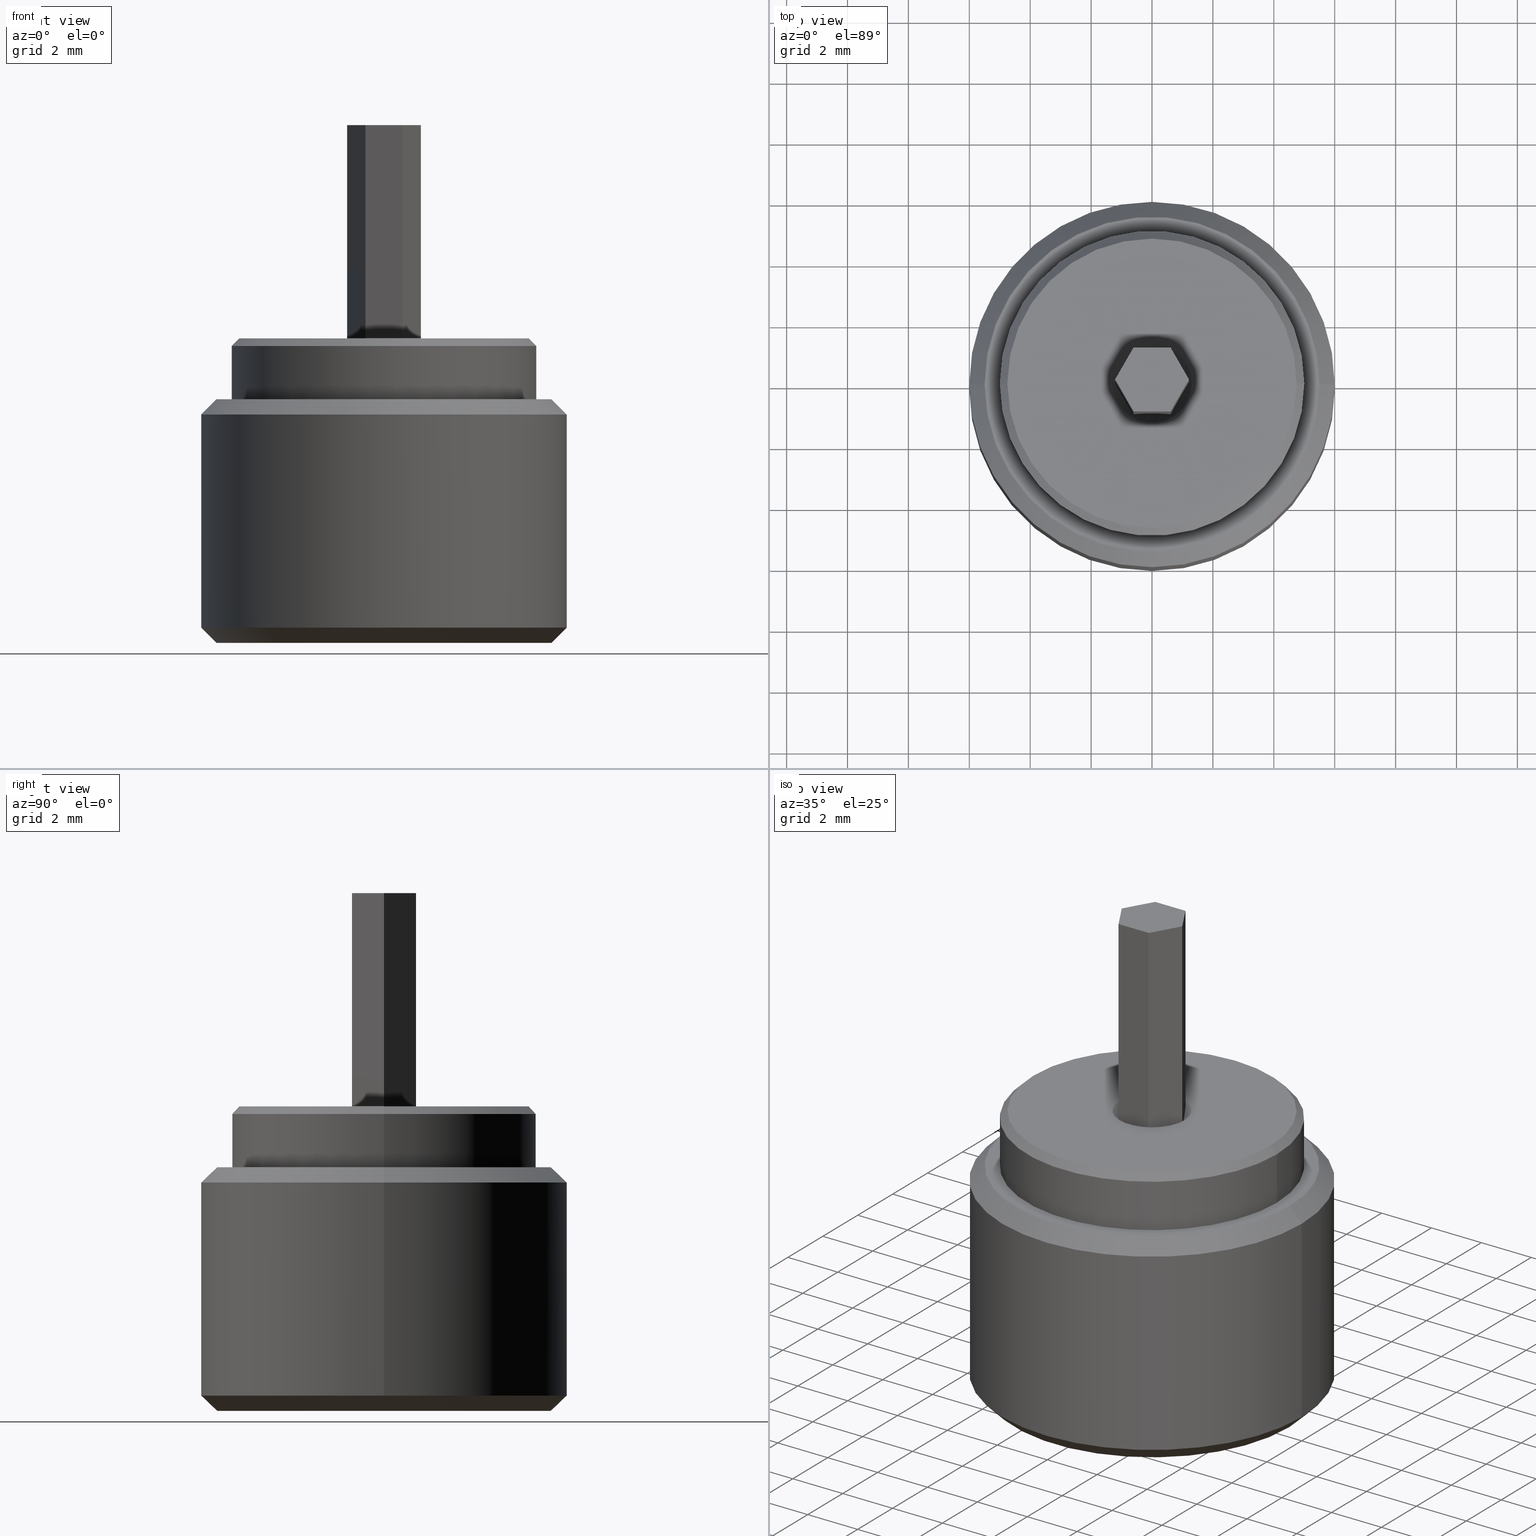
[diagram: canonical four-view strip — front | top / right | iso, engineering-drawing reading convention]
A machine part, canonical four-view strip (front | top / right | iso — engineering-drawing reading convention). The complete STEP part file that produces these views, byte-faithful:
ISO-10303-21;
HEADER;
FILE_DESCRIPTION (( 'STEP AP203' ),
    '1' );
FILE_NAME ('1.8.4.2_ZFN-#2-1210_��׼2x2mm��š��ĸ���壬��4mm��������12mm��L=10mm���㲿��.STEP',
    '2024-05-31T07:32:12',
    ( '' ),
    ( '' ),
    'SwSTEP 2.0',
    'SolidWorks 2021',
    '' );
FILE_SCHEMA (( 'CONFIG_CONTROL_DESIGN' ));
ENDSEC;

DATA;
#1 = ORIENTED_EDGE ( 'NONE', *, *, #556, .F. ) ;
#2 = APPROVAL_STATUS ( 'not_yet_approved' ) ;
#3 = LINE ( 'NONE', #767, #904 ) ;
#4 = UNCERTAINTY_MEASURE_WITH_UNIT (LENGTH_MEASURE( 1.000000000000000082E-05 ), #735, 'distance_accuracy_value', 'NONE');
#5 = APPLICATION_CONTEXT ( 'configuration controlled 3d designs of mechanical parts and assemblies' ) ;
#6 = VERTEX_POINT ( 'NONE', #603 ) ;
#7 = DIRECTION ( 'NONE',  ( 1.000000000000000000, 0.000000000000000000, 0.000000000000000000 ) ) ;
#8 = ORIENTED_EDGE ( 'NONE', *, *, #744, .T. ) ;
#9 = DATE_TIME_ROLE ( 'classification_date' ) ;
#10 = EDGE_CURVE ( 'NONE', #401, #854, #676, .T. ) ;
#11 = DIRECTION ( 'NONE',  ( -1.000000000000000000, 0.000000000000000000, 0.000000000000000000 ) ) ;
#12 = CARTESIAN_POINT ( 'NONE',  ( 1.050000000000000044, 0.000000000000000000, 6.000000000000000000 ) ) ;
#13 = EDGE_LOOP ( 'NONE', ( #757, #1, #687, #8 ) ) ;
#14 = CIRCLE ( 'NONE', #513, 5.500000000000000888 ) ;
#15 = ADVANCED_FACE ( 'NONE', ( #769 ), #267, .T. ) ;
#16 = PERSON_AND_ORGANIZATION_ROLE ( 'creator' ) ;
#17 = DIRECTION ( 'NONE',  ( -0.000000000000000000, -0.000000000000000000, -1.000000000000000000 ) ) ;
#18 = LINE ( 'NONE', #382, #213 ) ;
#19 = SECURITY_CLASSIFICATION ( '', '', #984 ) ;
#20 = ORIENTED_EDGE ( 'NONE', *, *, #581, .T. ) ;
#21 = COORDINATED_UNIVERSAL_TIME_OFFSET ( 8, 0, .AHEAD. ) ;
#22 = LINE ( 'NONE', #627, #420 ) ;
#23 = LINE ( 'NONE', #858, #922 ) ;
#24 = ORIENTED_EDGE ( 'NONE', *, *, #842, .F. ) ;
#25 = LOCAL_TIME ( 15, 32, 12.00000000000000000, #457 ) ;
#26 = DATE_AND_TIME ( #402, #227 ) ;
#27 = LINE ( 'NONE', #568, #501 ) ;
#28 = APPROVAL ( #706, 'δָ��' ) ;
#29 = DIRECTION ( 'NONE',  ( 1.000000000000000000, 0.000000000000000000, 0.000000000000000000 ) ) ;
#30 = ORIENTED_EDGE ( 'NONE', *, *, #704, .T. ) ;
#31 = EDGE_CURVE ( 'NONE', #486, #622, #529, .T. ) ;
#32 = PRODUCT_DEFINITION_SHAPE ( 'NONE', 'NONE',  #597 ) ;
#33 = DIRECTION ( 'NONE',  ( 1.000000000000000000, 0.000000000000000000, 0.000000000000000000 ) ) ;
#34 = PLANE ( 'NONE',  #394 ) ;
#35 = ORIENTED_EDGE ( 'NONE', *, *, #300, .F. ) ;
#36 = DIRECTION ( 'NONE',  ( -0.000000000000000000, -0.000000000000000000, 1.000000000000000000 ) ) ;
#37 = DIRECTION ( 'NONE',  ( 1.000000000000000000, 0.000000000000000000, 0.000000000000000000 ) ) ;
#38 = APPROVAL_PERSON_ORGANIZATION ( #407, #423, #730 ) ;
#39 = LINE ( 'NONE', #945, #728 ) ;
#40 = ADVANCED_FACE ( 'NONE', ( #539 ), #882, .T. ) ;
#41 = CARTESIAN_POINT ( 'NONE',  ( 0.6062177826491048638, -1.050000000000002265, 17.00000000000000000 ) ) ;
#42 = COORDINATED_UNIVERSAL_TIME_OFFSET ( 8, 0, .AHEAD. ) ;
#43 = ADVANCED_FACE ( 'NONE', ( #544 ), #391, .F. ) ;
#44 = AXIS2_PLACEMENT_3D ( 'NONE', #897, #425, #135 ) ;
#45 = FACE_OUTER_BOUND ( 'NONE', #166, .T. ) ;
#46 = DATE_TIME_ROLE ( 'creation_date' ) ;
#47 = CARTESIAN_POINT ( 'NONE',  ( 0.000000000000000000, 0.000000000000000000, 0.000000000000000000 ) ) ;
#48 = VERTEX_POINT ( 'NONE', #532 ) ;
#49 = PERSON_AND_ORGANIZATION_ROLE ( 'design_owner' ) ;
#50 = CARTESIAN_POINT ( 'NONE',  ( 0.6062177826491099708, 1.049999999999998934, 17.00000000000000000 ) ) ;
#51 = CC_DESIGN_APPROVAL ( #28, ( #542 ) ) ;
#52 = APPROVAL ( #771, 'δָ��' ) ;
#53 = CARTESIAN_POINT ( 'NONE',  ( -4.750000000000007105, 0.000000000000000000, 10.00000000000000000 ) ) ;
#54 = CONICAL_SURFACE ( 'NONE', #650, 1.050000000000000044, 0.7853981633974561616 ) ;
#55 = DIRECTION ( 'NONE',  ( 2.325010688521794335E-15, 1.000000000000000000, -0.000000000000000000 ) ) ;
#56 = CARTESIAN_POINT ( 'NONE',  ( -1.050000000000000044, 1.285879139104720978E-16, 6.000000000000000000 ) ) ;
#57 = EDGE_LOOP ( 'NONE', ( #381, #852 ) ) ;
#58 = PERSON_AND_ORGANIZATION ( #236, #285 ) ;
#59 = DIRECTION ( 'NONE',  ( 1.000000000000000000, 0.000000000000000000, 0.000000000000000000 ) ) ;
#60 = ADVANCED_FACE ( 'NONE', ( #703 ), #580, .T. ) ;
#61 = LOCAL_TIME ( 15, 32, 12.00000000000000000, #480 ) ;
#62 = ORIENTED_EDGE ( 'NONE', *, *, #929, .F. ) ;
#63 = VERTEX_POINT ( 'NONE', #472 ) ;
#64 = COORDINATED_UNIVERSAL_TIME_OFFSET ( 8, 0, .AHEAD. ) ;
#65 = ADVANCED_FACE ( 'NONE', ( #298 ), #617, .F. ) ;
#66 = CARTESIAN_POINT ( 'NONE',  ( 0.000000000000000000, 0.000000000000000000, 10.00000000000000000 ) ) ;
#67 =( REPRESENTATION_RELATIONSHIP ('NONE','NONE', #82, #878 ) REPRESENTATION_RELATIONSHIP_WITH_TRANSFORMATION ( #662 )SHAPE_REPRESENTATION_RELATIONSHIP( ) );
#68 = FACE_OUTER_BOUND ( 'NONE', #475, .T. ) ;
#69 = VECTOR ( 'NONE', #195, 1000.000000000000114 ) ;
#70 = APPROVAL_DATE_TIME ( #759, #439 ) ;
#71 = VERTEX_POINT ( 'NONE', #311 ) ;
#72 = CALENDAR_DATE ( 2024, 31, 5 ) ;
#73 = CARTESIAN_POINT ( 'NONE',  ( 1.050000000000000044, 0.000000000000000000, 9.750000000000001776 ) ) ;
#74 = ORIENTED_EDGE ( 'NONE', *, *, #566, .T. ) ;
#75 = DIRECTION ( 'NONE',  ( 0.5000000000000018874, 0.8660254037844375974, 0.000000000000000000 ) ) ;
#76 = EDGE_LOOP ( 'NONE', ( #717, #847, #175, #24 ) ) ;
#77 = EDGE_CURVE ( 'NONE', #430, #71, #23, .T. ) ;
#78 = FACE_OUTER_BOUND ( 'NONE', #608, .T. ) ;
#79 = UNCERTAINTY_MEASURE_WITH_UNIT (LENGTH_MEASURE( 1.000000000000000082E-05 ), #573, 'distance_accuracy_value', 'NONE');
#80 = CARTESIAN_POINT ( 'NONE',  ( -0.6062177826491047528, 1.050000000000001821, 17.00000000000000000 ) ) ;
#81 = EDGE_CURVE ( 'NONE', #622, #486, #957, .T. ) ;
#82 = SHAPE_REPRESENTATION ( '1.8.4.2_ZFN-#2-1210_��׼2x2mm��š��ĸ���壬��4mm��������12mm��L=10mm���㲿��', ( #670, #823, #955 ), #791 ) ;
#83 = VERTEX_POINT ( 'NONE', #12 ) ;
#84 = PERSON_AND_ORGANIZATION ( #236, #285 ) ;
#85 = DIRECTION ( 'NONE',  ( 0.000000000000000000, 0.000000000000000000, 1.000000000000000000 ) ) ;
#86 = DIRECTION ( 'NONE',  ( 1.000000000000000000, 0.000000000000000000, 0.000000000000000000 ) ) ;
#87 = CC_DESIGN_PERSON_AND_ORGANIZATION_ASSIGNMENT ( #657, #515, ( #491 ) ) ;
#88 = CLOSED_SHELL ( 'NONE', ( #127, #807, #65, #331, #982, #643, #260, #431 ) ) ;
#89 = ORIENTED_EDGE ( 'NONE', *, *, #388, .T. ) ;
#90 = AXIS2_PLACEMENT_3D ( 'NONE', #132, #659, #583 ) ;
#91 = DATE_AND_TIME ( #785, #524 ) ;
#92 = FACE_OUTER_BOUND ( 'NONE', #849, .T. ) ;
#93 = DIRECTION ( 'NONE',  ( 1.000000000000000000, 0.000000000000000000, 0.000000000000000000 ) ) ;
#94 = VERTEX_POINT ( 'NONE', #393 ) ;
#95 = APPLICATION_PROTOCOL_DEFINITION ( 'international standard', 'config_control_design', 1994, #5 ) ;
#96 = PRODUCT_DEFINITION ( 'δ֪', '', #247, #233 ) ;
#97 = PLANE ( 'NONE',  #921 ) ;
#98 = PRODUCT ( '1.8.4.2_ZFN-#2-1210_��׼2x2mm��š��ĸ���壬��4mm��������12mm��L=10mm���㲿��', '1.8.4.2_ZFN-#2-1210_��׼2x2mm��š��ĸ���壬��4mm��������12mm��L=10mm���㲿��', '', ( #379 ) ) ;
#99 = DIRECTION ( 'NONE',  ( -1.000000000000000000, 0.000000000000000000, 0.000000000000000000 ) ) ;
#100 = EDGE_CURVE ( 'NONE', #854, #401, #190, .T. ) ;
#101 = VERTEX_POINT ( 'NONE', #774 ) ;
#102 = APPROVAL_PERSON_ORGANIZATION ( #887, #656, #397 ) ;
#103 = APPROVAL_DATE_TIME ( #938, #656 ) ;
#104 = CARTESIAN_POINT ( 'NONE',  ( -0.6062177826491047528, 1.050000000000001821, 6.000000000000000000 ) ) ;
#105 = PERSON ( 'NAUO-PER1', 'UNSPECIFIED', 'UNSPECIFIED', ('UNSPECIFIED'), ('UNSPECIFIED'), ('UNSPECIFIED') ) ;
#106 = DIRECTION ( 'NONE',  ( 0.7071067811865487940, 0.000000000000000000, 0.7071067811865463515 ) ) ;
#107 = ORIENTED_EDGE ( 'NONE', *, *, #949, .F. ) ;
#108 = VECTOR ( 'NONE', #953, 1000.000000000000000 ) ;
#109 = PRODUCT_DEFINITION_SHAPE ( 'NONE', 'NONE',  #96 ) ;
#110 = AXIS2_PLACEMENT_3D ( 'NONE', #550, #872, #951 ) ;
#111 = DIRECTION ( 'NONE',  ( 1.000000000000000000, 0.000000000000000000, 0.000000000000000000 ) ) ;
#112 = DIRECTION ( 'NONE',  ( 1.000000000000000000, 0.000000000000000000, 0.000000000000000000 ) ) ;
#113 = EDGE_CURVE ( 'NONE', #63, #545, #373, .T. ) ;
#114 = DIRECTION ( 'NONE',  ( 1.000000000000000000, 0.000000000000000000, -0.000000000000000000 ) ) ;
#115 = CARTESIAN_POINT ( 'NONE',  ( -1.212435565298213946, 2.475030271877065591E-15, 17.00000000000000000 ) ) ;
#116 = EDGE_CURVE ( 'NONE', #240, #531, #18, .T. ) ;
#117 = LOCAL_TIME ( 15, 32, 12.00000000000000000, #701 ) ;
#118 = CARTESIAN_POINT ( 'NONE',  ( 6.000000000000000888, 0.000000000000000000, 0.4999999999999987232 ) ) ;
#119 = DATE_AND_TIME ( #651, #207 ) ;
#120 = CC_DESIGN_DATE_AND_TIME_ASSIGNMENT ( #836, #133, ( #491 ) ) ;
#121 = CIRCLE ( 'NONE', #212, 5.000000000000000000 ) ;
#122 = FACE_OUTER_BOUND ( 'NONE', #710, .T. ) ;
#123 = VECTOR ( 'NONE', #716, 1000.000000000000000 ) ;
#124 = ORIENTED_EDGE ( 'NONE', *, *, #467, .T. ) ;
#125 = DATE_AND_TIME ( #890, #837 ) ;
#126 = DIRECTION ( 'NONE',  ( 1.000000000000000000, 0.000000000000000000, 0.000000000000000000 ) ) ;
#127 = ADVANCED_FACE ( 'NONE', ( #609 ), #920, .F. ) ;
#128 = DIRECTION ( 'NONE',  ( 1.000000000000000000, 0.000000000000000000, 0.000000000000000000 ) ) ;
#129 = EDGE_CURVE ( 'NONE', #931, #101, #278, .T. ) ;
#130 = DATE_AND_TIME ( #748, #754 ) ;
#131 = DIRECTION ( 'NONE',  ( 1.000000000000000000, 0.000000000000000000, 0.000000000000000000 ) ) ;
#132 = CARTESIAN_POINT ( 'NONE',  ( 0.000000000000000000, 0.000000000000000000, 10.00000000000000000 ) ) ;
#133 = DATE_TIME_ROLE ( 'classification_date' ) ;
#134 = DIRECTION ( 'NONE',  ( -0.000000000000000000, -0.000000000000000000, -1.000000000000000000 ) ) ;
#135 = DIRECTION ( 'NONE',  ( 1.000000000000000000, 0.000000000000000000, 0.000000000000000000 ) ) ;
#136 = EDGE_LOOP ( 'NONE', ( #775, #668, #276, #610 ) ) ;
#137 = DATE_AND_TIME ( #584, #141 ) ;
#138 = ORIENTED_EDGE ( 'NONE', *, *, #282, .T. ) ;
#139 = ADVANCED_FACE ( 'NONE', ( #68 ), #798, .T. ) ;
#140 = DATE_AND_TIME ( #146, #449 ) ;
#141 = LOCAL_TIME ( 15, 32, 12.00000000000000000, #223 ) ;
#142 = CARTESIAN_POINT ( 'NONE',  ( -5.500000000000000888, 0.000000000000000000, 8.000000000000000000 ) ) ;
#143 = PERSON_AND_ORGANIZATION_ROLE ( 'classification_officer' ) ;
#144 = ADVANCED_FACE ( 'NONE', ( #162 ), #944, .T. ) ;
#145 = VERTEX_POINT ( 'NONE', #41 ) ;
#146 = CALENDAR_DATE ( 2024, 31, 5 ) ;
#147 = FACE_OUTER_BOUND ( 'NONE', #242, .T. ) ;
#148 = APPROVAL_PERSON_ORGANIZATION ( #512, #947, #238 ) ;
#149 = ORIENTED_EDGE ( 'NONE', *, *, #157, .T. ) ;
#150 = DIRECTION ( 'NONE',  ( -0.000000000000000000, -0.000000000000000000, -1.000000000000000000 ) ) ;
#151 = PERSON_AND_ORGANIZATION ( #236, #285 ) ;
#152 = ORIENTED_EDGE ( 'NONE', *, *, #113, .T. ) ;
#153 = PERSON_AND_ORGANIZATION_ROLE ( 'design_owner' ) ;
#154 = LINE ( 'NONE', #232, #729 ) ;
#155 = EDGE_LOOP ( 'NONE', ( #591, #660, #107, #426 ) ) ;
#156 = DIRECTION ( 'NONE',  ( 1.000000000000000000, 0.000000000000000000, 0.000000000000000000 ) ) ;
#157 = EDGE_CURVE ( 'NONE', #522, #401, #327, .T. ) ;
#158 = PERSON_AND_ORGANIZATION_ROLE ( 'design_owner' ) ;
#159 = APPLICATION_CONTEXT ( 'configuration controlled 3d designs of mechanical parts and assemblies' ) ;
#160 = CC_DESIGN_PERSON_AND_ORGANIZATION_ASSIGNMENT ( #448, #164, ( #96 ) ) ;
#161 = FACE_OUTER_BOUND ( 'NONE', #13, .T. ) ;
#162 = FACE_OUTER_BOUND ( 'NONE', #305, .T. ) ;
#163 = ORIENTED_EDGE ( 'NONE', *, *, #986, .F. ) ;
#164 = PERSON_AND_ORGANIZATION_ROLE ( 'creator' ) ;
#165 = DIRECTION ( 'NONE',  ( 1.000000000000000000, 0.000000000000000000, 0.000000000000000000 ) ) ;
#166 = EDGE_LOOP ( 'NONE', ( #905, #392, #725, #234, #936, #335 ) ) ;
#167 = CARTESIAN_POINT ( 'NONE',  ( 0.000000000000000000, 0.000000000000000000, 9.750000000000001776 ) ) ;
#168 = SECURITY_CLASSIFICATION ( '', '', #243 ) ;
#169 = ORIENTED_EDGE ( 'NONE', *, *, #606, .T. ) ;
#170 = CALENDAR_DATE ( 2024, 31, 5 ) ;
#171 = DIRECTION ( 'NONE',  ( -0.5000000000000018874, -0.8660254037844375974, 0.000000000000000000 ) ) ;
#172 = DIRECTION ( 'NONE',  ( 1.000000000000000000, 0.000000000000000000, 0.000000000000000000 ) ) ;
#173 = CIRCLE ( 'NONE', #862, 1.050000000000000044 ) ;
#174 = CC_DESIGN_PERSON_AND_ORGANIZATION_ASSIGNMENT ( #576, #476, ( #542 ) ) ;
#175 = ORIENTED_EDGE ( 'NONE', *, *, #481, .T. ) ;
#176 = AXIS2_PLACEMENT_3D ( 'NONE', #683, #846, #11 ) ;
#177 = PERSON_AND_ORGANIZATION_ROLE ( 'creator' ) ;
#178 = CARTESIAN_POINT ( 'NONE',  ( 0.000000000000000000, 0.000000000000000000, 9.750000000000005329 ) ) ;
#179 = CARTESIAN_POINT ( 'NONE',  ( 0.000000000000000000, 0.000000000000000000, 10.00000000000000178 ) ) ;
#180 = ORIENTED_EDGE ( 'NONE', *, *, #230, .T. ) ;
#181 = PERSON_AND_ORGANIZATION ( #236, #285 ) ;
#182 = DIRECTION ( 'NONE',  ( 0.000000000000000000, 0.000000000000000000, 1.000000000000000000 ) ) ;
#183 = CARTESIAN_POINT ( 'NONE',  ( -5.000000000000000000, 6.123233995736765296E-16, -16.97056274847714263 ) ) ;
#184 = ORIENTED_EDGE ( 'NONE', *, *, #100, .F. ) ;
#185 = SECURITY_CLASSIFICATION ( '', '', #961 ) ;
#186 = DIRECTION ( 'NONE',  ( 0.000000000000000000, 0.000000000000000000, -1.000000000000000000 ) ) ;
#187 = DIRECTION ( 'NONE',  ( -0.4999999999999978906, 0.8660254037844397068, 0.000000000000000000 ) ) ;
#188 = EDGE_CURVE ( 'NONE', #534, #618, #488, .T. ) ;
#189 = VECTOR ( 'NONE', #482, 1000.000000000000000 ) ;
#190 = CIRCLE ( 'NONE', #421, 6.000000000000000888 ) ;
#191 = CARTESIAN_POINT ( 'NONE',  ( 0.6062177826491099708, 1.049999999999998934, 17.00000000000000000 ) ) ;
#192 = ADVANCED_FACE ( 'NONE', ( #415 ), #435, .T. ) ;
#193 = PLANE ( 'NONE',  #663 ) ;
#194 = SHAPE_DEFINITION_REPRESENTATION ( #109, #82 ) ;
#195 = DIRECTION ( 'NONE',  ( -0.4999999999999977240, 0.8660254037844398178, 0.000000000000000000 ) ) ;
#196 = CARTESIAN_POINT ( 'NONE',  ( 5.000000000000000000, 0.000000000000000000, 8.000000000000000000 ) ) ;
#197 = DATE_AND_TIME ( #170, #304 ) ;
#198 = PRODUCT_DEFINITION_FORMATION_WITH_SPECIFIED_SOURCE ( '�κ�', '', #863, .NOT_KNOWN. ) ;
#199 = ORIENTED_EDGE ( 'NONE', *, *, #388, .F. ) ;
#200 = APPROVAL_ROLE ( '' ) ;
#201 = ADVANCED_FACE ( 'NONE', ( #494 ), #709, .F. ) ;
#202 = ADVANCED_FACE ( 'NONE', ( #946 ), #413, .T. ) ;
#203 = CARTESIAN_POINT ( 'NONE',  ( 0.000000000000000000, 0.000000000000000000, 9.750000000000001776 ) ) ;
#204 = VERTEX_POINT ( 'NONE', #571 ) ;
#205 = EDGE_LOOP ( 'NONE', ( #624, #283, #406, #199 ) ) ;
#206 = ITEM_DEFINED_TRANSFORMATION ( 'NONE', 'NONE', #823,  #358 ) ;
#207 = LOCAL_TIME ( 15, 32, 12.00000000000000000, #42 ) ;
#208 = DIRECTION ( 'NONE',  ( 1.000000000000000000, 0.000000000000000000, 0.000000000000000000 ) ) ;
#209 = CONTEXT_DEPENDENT_SHAPE_REPRESENTATION ( #579, #714 ) ;
#210 = ADVANCED_FACE ( 'NONE', ( #940 ), #959, .T. ) ;
#211 = PERSON_AND_ORGANIZATION_ROLE ( 'design_supplier' ) ;
#212 = AXIS2_PLACEMENT_3D ( 'NONE', #178, #186, #111 ) ;
#213 = VECTOR ( 'NONE', #75, 1000.000000000000000 ) ;
#214 = DIRECTION ( 'NONE',  ( 0.7071067811865531239, 0.000000000000000000, 0.7071067811865420216 ) ) ;
#215 = VECTOR ( 'NONE', #889, 1000.000000000000227 ) ;
#216 = CC_DESIGN_PERSON_AND_ORGANIZATION_ASSIGNMENT ( #861, #177, ( #542 ) ) ;
#217 = CALENDAR_DATE ( 2024, 31, 5 ) ;
#218 = ORIENTED_EDGE ( 'NONE', *, *, #744, .F. ) ;
#219 = DATE_TIME_ROLE ( 'creation_date' ) ;
#220 = CC_DESIGN_APPROVAL ( #521, ( #19 ) ) ;
#221 = LINE ( 'NONE', #517, #592 ) ;
#222 = CARTESIAN_POINT ( 'NONE',  ( 0.000000000000000000, 0.000000000000000000, 10.00000000000000178 ) ) ;
#223 = COORDINATED_UNIVERSAL_TIME_OFFSET ( 8, 0, .AHEAD. ) ;
#224 = ORIENTED_EDGE ( 'NONE', *, *, #842, .T. ) ;
#225 = APPROVAL_DATE_TIME ( #912, #874 ) ;
#226 = DIRECTION ( 'NONE',  ( 1.000000000000000000, 0.000000000000000000, -0.000000000000000000 ) ) ;
#227 = LOCAL_TIME ( 15, 32, 12.00000000000000000, #812 ) ;
#228 = DIRECTION ( 'NONE',  ( 1.000000000000000000, 0.000000000000000000, 0.000000000000000000 ) ) ;
#229 = ORIENTED_EDGE ( 'NONE', *, *, #282, .F. ) ;
#230 = EDGE_CURVE ( 'NONE', #545, #63, #985, .T. ) ;
#231 = APPROVAL_DATE_TIME ( #140, #749 ) ;
#232 = CARTESIAN_POINT ( 'NONE',  ( -0.6062177826491047528, 1.050000000000001821, 17.00000000000000000 ) ) ;
#233 = DESIGN_CONTEXT ( 'detailed design', #159, 'design' ) ;
#234 = ORIENTED_EDGE ( 'NONE', *, *, #273, .T. ) ;
#235 = DIRECTION ( 'NONE',  ( -0.000000000000000000, -0.000000000000000000, -1.000000000000000000 ) ) ;
#236 = PERSON ( 'δָ��', 'δָ��', 'δָ��', ('δָ��'), ('δָ��'), ('δָ��') ) ;
#237 = ORIENTED_EDGE ( 'NONE', *, *, #299, .F. ) ;
#238 = APPROVAL_ROLE ( '' ) ;
#239 = CARTESIAN_POINT ( 'NONE',  ( -0.6062177826491091936, -1.049999999999999600, 6.000000000000000000 ) ) ;
#240 = VERTEX_POINT ( 'NONE', #629 ) ;
#241 = DIRECTION ( 'NONE',  ( 0.000000000000000000, 0.000000000000000000, 1.000000000000000000 ) ) ;
#242 = EDGE_LOOP ( 'NONE', ( #124, #705 ) ) ;
#243 = SECURITY_CLASSIFICATION_LEVEL ( 'unclassified' ) ;
#244 = CARTESIAN_POINT ( 'NONE',  ( 6.000000000000000888, 7.347880794884120722E-16, 0.4999999999999987232 ) ) ;
#245 = VERTEX_POINT ( 'NONE', #196 ) ;
#246 = CARTESIAN_POINT ( 'NONE',  ( 0.000000000000000000, 0.000000000000000000, 7.500000000000000000 ) ) ;
#247 = PRODUCT_DEFINITION_FORMATION_WITH_SPECIFIED_SOURCE ( '�κ�', '', #98, .NOT_KNOWN. ) ;
#248 = ORIENTED_EDGE ( 'NONE', *, *, #552, .T. ) ;
#249 = PERSON_AND_ORGANIZATION_ROLE ( 'creator' ) ;
#250 = DIRECTION ( 'NONE',  ( 0.5000000000000018874, 0.8660254037844375974, 0.000000000000000000 ) ) ;
#251 = FACE_OUTER_BOUND ( 'NONE', #136, .T. ) ;
#252 = CC_DESIGN_PERSON_AND_ORGANIZATION_ASSIGNMENT ( #342, #249, ( #597 ) ) ;
#253 = AXIS2_PLACEMENT_3D ( 'NONE', #697, #292, #596 ) ;
#254 = AXIS2_PLACEMENT_3D ( 'NONE', #843, #241, #7 ) ;
#255 = AXIS2_PLACEMENT_3D ( 'NONE', #279, #815, #364 ) ;
#256 = COORDINATED_UNIVERSAL_TIME_OFFSET ( 8, 0, .AHEAD. ) ;
#257 = CARTESIAN_POINT ( 'NONE',  ( 1.212435565298214390, -3.035766082959412415E-15, 17.00000000000000000 ) ) ;
#258 = CARTESIAN_POINT ( 'NONE',  ( 0.000000000000000000, 0.000000000000000000, 17.00000000000000000 ) ) ;
#259 = LINE ( 'NONE', #642, #108 ) ;
#260 = ADVANCED_FACE ( 'NONE', ( #45 ), #193, .T. ) ;
#261 = CARTESIAN_POINT ( 'NONE',  ( 0.6062177826491099708, 1.049999999999998934, 17.00000000000000000 ) ) ;
#262 = ORIENTED_EDGE ( 'NONE', *, *, #300, .T. ) ;
#263 = CC_DESIGN_PERSON_AND_ORGANIZATION_ASSIGNMENT ( #541, #776, ( #168 ) ) ;
#264 = LINE ( 'NONE', #563, #310 ) ;
#265 = LINE ( 'NONE', #478, #123 ) ;
#266 = AXIS2_PLACEMENT_3D ( 'NONE', #346, #503, #131 ) ;
#267 = CONICAL_SURFACE ( 'NONE', #825, 6.000000000000000888, 0.7853981633974500554 ) ;
#268 = CIRCLE ( 'NONE', #44, 1.300000000000002487 ) ;
#269 = DIRECTION ( 'NONE',  ( 1.000000000000000000, 0.000000000000000000, 0.000000000000000000 ) ) ;
#270 = DIRECTION ( 'NONE',  ( 1.000000000000000000, 0.000000000000000000, 0.000000000000000000 ) ) ;
#271 = DATE_TIME_ROLE ( 'classification_date' ) ;
#272 = FACE_OUTER_BOUND ( 'NONE', #636, .T. ) ;
#273 = EDGE_CURVE ( 'NONE', #510, #446, #954, .T. ) ;
#274 = PERSON_AND_ORGANIZATION_ROLE ( 'creator' ) ;
#275 = CC_DESIGN_APPROVAL ( #749, ( #803 ) ) ;
#276 = ORIENTED_EDGE ( 'NONE', *, *, #273, .F. ) ;
#277 = PLANE ( 'NONE',  #434 ) ;
#278 = CIRCLE ( 'NONE', #778, 5.500000000000000888 ) ;
#279 = CARTESIAN_POINT ( 'NONE',  ( 0.000000000000000000, 0.000000000000000000, 8.000000000000000000 ) ) ;
#280 = DATE_TIME_ROLE ( 'classification_date' ) ;
#281 =( NAMED_UNIT ( * ) PLANE_ANGLE_UNIT ( ) SI_UNIT ( $, .RADIAN. ) );
#282 = EDGE_CURVE ( 'NONE', #854, #545, #265, .T. ) ;
#283 = ORIENTED_EDGE ( 'NONE', *, *, #81, .F. ) ;
#284 = DIRECTION ( 'NONE',  ( 1.000000000000000000, 0.000000000000000000, 0.000000000000000000 ) ) ;
#285 = ORGANIZATION ( 'δָ��', 'δָ��', '' ) ;
#286 = CC_DESIGN_DATE_AND_TIME_ASSIGNMENT ( #755, #219, ( #96 ) ) ;
#287 = LINE ( 'NONE', #360, #215 ) ;
#288 = ORIENTED_EDGE ( 'NONE', *, *, #672, .F. ) ;
#289 = CALENDAR_DATE ( 2024, 31, 5 ) ;
#290 = AXIS2_PLACEMENT_3D ( 'NONE', #464, #851, #59 ) ;
#291 = CLOSED_SHELL ( 'NONE', ( #192, #43, #15, #60, #201, #795, #533, #210, #320, #202, #765, #666, #806, #859, #139, #144, #359, #40 ) ) ;
#292 = DIRECTION ( 'NONE',  ( 0.000000000000000000, 0.000000000000000000, 1.000000000000000000 ) ) ;
#293 = CIRCLE ( 'NONE', #865, 5.000000000000000000 ) ;
#294 = EDGE_LOOP ( 'NONE', ( #900, #169, #318, #35 ) ) ;
#295 = APPROVAL_DATE_TIME ( #516, #947 ) ;
#296 = CARTESIAN_POINT ( 'NONE',  ( 0.6062177826491099708, 1.049999999999998934, 6.000000000000000000 ) ) ;
#297 = ORIENTED_EDGE ( 'NONE', *, *, #467, .F. ) ;
#298 = FACE_OUTER_BOUND ( 'NONE', #155, .T. ) ;
#299 = EDGE_CURVE ( 'NONE', #324, #204, #492, .T. ) ;
#300 = EDGE_CURVE ( 'NONE', #931, #545, #787, .T. ) ;
#301 = APPROVAL_ROLE ( '' ) ;
#302 = ADVANCED_BREP_SHAPE_REPRESENTATION ( '', ( #569, #358 ), #694 ) ;
#303 = DIRECTION ( 'NONE',  ( 1.000000000000000000, 0.000000000000000000, 0.000000000000000000 ) ) ;
#304 = LOCAL_TIME ( 15, 32, 12.00000000000000000, #427 ) ;
#305 = EDGE_LOOP ( 'NONE', ( #869, #752, #262, #684 ) ) ;
#306 = DIRECTION ( 'NONE',  ( 0.7071067811865451302, 8.659560562354904508E-17, -0.7071067811865500152 ) ) ;
#307 = ORIENTED_EDGE ( 'NONE', *, *, #721, .F. ) ;
#308 = COORDINATED_UNIVERSAL_TIME_OFFSET ( 8, 0, .AHEAD. ) ;
#309 = LINE ( 'NONE', #296, #648 ) ;
#310 = VECTOR ( 'NONE', #881, 1000.000000000000000 ) ;
#311 = CARTESIAN_POINT ( 'NONE',  ( 5.000000000000000000, 0.000000000000000000, 9.750000000000005329 ) ) ;
#312 = VECTOR ( 'NONE', #316, 1000.000000000000000 ) ;
#313 = ORIENTED_EDGE ( 'NONE', *, *, #347, .F. ) ;
#314 = DATE_AND_TIME ( #594, #323 ) ;
#315 = APPROVAL_PERSON_ORGANIZATION ( #657, #439, #589 ) ;
#316 = DIRECTION ( 'NONE',  ( -0.000000000000000000, -0.000000000000000000, -1.000000000000000000 ) ) ;
#317 = CARTESIAN_POINT ( 'NONE',  ( 1.212435565298214390, -3.035766082959412415E-15, 17.00000000000000000 ) ) ;
#318 = ORIENTED_EDGE ( 'NONE', *, *, #230, .F. ) ;
#319 = APPROVAL_STATUS ( 'not_yet_approved' ) ;
#320 = ADVANCED_FACE ( 'NONE', ( #802 ), #34, .F. ) ;
#321 = CYLINDRICAL_SURFACE ( 'NONE', #879, 5.000000000000000000 ) ;
#322 = DIRECTION ( 'NONE',  ( -1.000000000000000000, 0.000000000000000000, 0.000000000000000000 ) ) ;
#323 = LOCAL_TIME ( 15, 32, 12.00000000000000000, #766 ) ;
#324 = VERTEX_POINT ( 'NONE', #727 ) ;
#325 = PERSON_AND_ORGANIZATION ( #236, #285 ) ;
#326 = CARTESIAN_POINT ( 'NONE',  ( 0.000000000000000000, 0.000000000000000000, 6.000000000000000000 ) ) ;
#327 = LINE ( 'NONE', #719, #344 ) ;
#328 = PRODUCT_DEFINITION_SHAPE ( 'NONE', 'NONE',  #991 ) ;
#329 = AXIS2_PLACEMENT_3D ( 'NONE', #338, #867, #884 ) ;
#330 = ORIENTED_EDGE ( 'NONE', *, *, #818, .T. ) ;
#331 = ADVANCED_FACE ( 'NONE', ( #251 ), #561, .F. ) ;
#332 = CARTESIAN_POINT ( 'NONE',  ( 5.500000000000000888, 7.041719095097281866E-16, 8.000000000000000000 ) ) ;
#333 = CARTESIAN_POINT ( 'NONE',  ( 0.000000000000000000, 0.000000000000000000, 0.000000000000000000 ) ) ;
#334 = CC_DESIGN_DATE_AND_TIME_ASSIGNMENT ( #91, #271, ( #185 ) ) ;
#335 = ORIENTED_EDGE ( 'NONE', *, *, #960, .T. ) ;
#336 = LINE ( 'NONE', #257, #69 ) ;
#337 = PRODUCT ( '1.8.4.2.2_ֱ��ʽ2x2mm���ǰ��֣�����11mm���㲿��', '1.8.4.2.2_ֱ��ʽ2x2mm���ǰ��֣�����11mm���㲿��', '', ( #443 ) ) ;
#338 = CARTESIAN_POINT ( 'NONE',  ( 0.000000000000000000, 0.000000000000000000, 10.00000000000000000 ) ) ;
#339 = CC_DESIGN_APPROVAL ( #973, ( #198 ) ) ;
#340 = DIRECTION ( 'NONE',  ( -0.000000000000000000, -0.000000000000000000, 1.000000000000000000 ) ) ;
#341 = DIRECTION ( 'NONE',  ( -0.000000000000000000, -0.000000000000000000, 1.000000000000000000 ) ) ;
#342 = PERSON_AND_ORGANIZATION ( #236, #285 ) ;
#343 = AXIS2_PLACEMENT_3D ( 'NONE', #871, #875, #412 ) ;
#344 = VECTOR ( 'NONE', #724, 1000.000000000000114 ) ;
#345 = VECTOR ( 'NONE', #689, 1000.000000000000114 ) ;
#346 = CARTESIAN_POINT ( 'NONE',  ( 0.000000000000000000, 0.000000000000000000, 0.000000000000000000 ) ) ;
#347 = EDGE_CURVE ( 'NONE', #948, #522, #14, .T. ) ;
#348 = CC_DESIGN_SECURITY_CLASSIFICATION ( #168, ( #198 ) ) ;
#349 = MECHANICAL_CONTEXT ( 'NONE', #720, 'mechanical' ) ;
#350 =( LENGTH_UNIT ( ) NAMED_UNIT ( * ) SI_UNIT ( .MILLI., .METRE. ) );
#351 = DIRECTION ( 'NONE',  ( -0.000000000000000000, -0.000000000000000000, -1.000000000000000000 ) ) ;
#352 = ORIENTED_EDGE ( 'NONE', *, *, #818, .F. ) ;
#353 = PERSON_AND_ORGANIZATION_ROLE ( 'creator' ) ;
#354 = CC_DESIGN_APPROVAL ( #656, ( #185 ) ) ;
#355 = DIRECTION ( 'NONE',  ( -0.7071067811865451302, 0.000000000000000000, -0.7071067811865500152 ) ) ;
#356 = ORIENTED_EDGE ( 'NONE', *, *, #496, .F. ) ;
#357 = APPROVAL_ROLE ( '' ) ;
#358 = AXIS2_PLACEMENT_3D ( 'NONE', #665, #895, #962 ) ;
#359 = ADVANCED_FACE ( 'NONE', ( #507 ), #54, .F. ) ;
#360 = CARTESIAN_POINT ( 'NONE',  ( -1.212435565298213946, 2.475030271877065591E-15, 6.000000000000000000 ) ) ;
#361 = EDGE_CURVE ( 'NONE', #101, #931, #489, .T. ) ;
#362 = CC_DESIGN_APPROVAL ( #585, ( #168 ) ) ;
#363 = LINE ( 'NONE', #50, #633 ) ;
#364 = DIRECTION ( 'NONE',  ( 1.000000000000000000, 0.000000000000000000, 0.000000000000000000 ) ) ;
#365 = ORIENTED_EDGE ( 'NONE', *, *, #893, .T. ) ;
#366 = APPROVAL_STATUS ( 'not_yet_approved' ) ;
#367 = PERSON_AND_ORGANIZATION ( #236, #285 ) ;
#368 = APPROVAL_PERSON_ORGANIZATION ( #371, #749, #301 ) ;
#369 = DIRECTION ( 'NONE',  ( 1.000000000000000000, -2.325010688521794335E-15, 0.000000000000000000 ) ) ;
#370 = COORDINATED_UNIVERSAL_TIME_OFFSET ( 8, 0, .AHEAD. ) ;
#371 = PERSON_AND_ORGANIZATION ( #236, #285 ) ;
#372 = AXIS2_PLACEMENT_3D ( 'NONE', #646, #182, #477 ) ;
#373 = CIRCLE ( 'NONE', #742, 6.000000000000000888 ) ;
#374 = CC_DESIGN_PERSON_AND_ORGANIZATION_ASSIGNMENT ( #58, #153, ( #337 ) ) ;
#375 = DIRECTION ( 'NONE',  ( -0.7071067811865487940, 8.659560562354950115E-17, 0.7071067811865463515 ) ) ;
#376 = DIRECTION ( 'NONE',  ( -1.000000000000000000, 0.000000000000000000, 0.000000000000000000 ) ) ;
#377 = EDGE_CURVE ( 'NONE', #48, #433, #287, .T. ) ;
#378 = ORIENTED_EDGE ( 'NONE', *, *, #582, .T. ) ;
#379 = MECHANICAL_CONTEXT ( 'NONE', #737, 'mechanical' ) ;
#380 = PLANE ( 'NONE',  #777 ) ;
#381 = ORIENTED_EDGE ( 'NONE', *, *, #129, .T. ) ;
#382 = CARTESIAN_POINT ( 'NONE',  ( 0.6062177826491048638, -1.050000000000002265, 6.000000000000000000 ) ) ;
#383 = APPLICATION_PROTOCOL_DEFINITION ( 'international standard', 'config_control_design', 1994, #926 ) ;
#384 = PLANE ( 'NONE',  #943 ) ;
#385 = CARTESIAN_POINT ( 'NONE',  ( 0.000000000000000000, 0.000000000000000000, 9.750000000000001776 ) ) ;
#386 = VERTEX_POINT ( 'NONE', #53 ) ;
#387 = APPLICATION_PROTOCOL_DEFINITION ( 'international standard', 'config_control_design', 1994, #737 ) ;
#388 = EDGE_CURVE ( 'NONE', #6, #675, #268, .T. ) ;
#389 = DIRECTION ( 'NONE',  ( 1.000000000000000000, 0.000000000000000000, 0.000000000000000000 ) ) ;
#390 =( GEOMETRIC_REPRESENTATION_CONTEXT ( 3 ) GLOBAL_UNCERTAINTY_ASSIGNED_CONTEXT ( ( #79 ) ) GLOBAL_UNIT_ASSIGNED_CONTEXT ( ( #573, #658, #969 ) ) REPRESENTATION_CONTEXT ( 'NONE', 'WORKASPACE' ) );
#391 = CONICAL_SURFACE ( 'NONE', #549, 1.050000000000000044, 0.7853981633974561616 ) ;
#392 = ORIENTED_EDGE ( 'NONE', *, *, #299, .T. ) ;
#393 = CARTESIAN_POINT ( 'NONE',  ( 1.212435565298214390, -3.035766082959412415E-15, 17.00000000000000000 ) ) ;
#394 = AXIS2_PLACEMENT_3D ( 'NONE', #333, #418, #638 ) ;
#395 = ORIENTED_EDGE ( 'NONE', *, *, #188, .T. ) ;
#396 = CC_DESIGN_DATE_AND_TIME_ASSIGNMENT ( #119, #46, ( #611 ) ) ;
#397 = APPROVAL_ROLE ( '' ) ;
#398 = LOCAL_TIME ( 15, 32, 12.00000000000000000, #452 ) ;
#399 = DIRECTION ( 'NONE',  ( -2.503857664561931390E-15, -1.000000000000000000, 0.000000000000000000 ) ) ;
#400 = DIRECTION ( 'NONE',  ( -1.000000000000000000, 0.000000000000000000, 0.000000000000000000 ) ) ;
#401 = VERTEX_POINT ( 'NONE', #970 ) ;
#402 = CALENDAR_DATE ( 2024, 31, 5 ) ;
#403 = DIRECTION ( 'NONE',  ( 0.000000000000000000, 0.000000000000000000, 1.000000000000000000 ) ) ;
#404 = CARTESIAN_POINT ( 'NONE',  ( 0.000000000000000000, 0.000000000000000000, 8.000000000000000000 ) ) ;
#405 = APPROVAL_PERSON_ORGANIZATION ( #850, #52, #604 ) ;
#406 = ORIENTED_EDGE ( 'NONE', *, *, #496, .T. ) ;
#407 = PERSON_AND_ORGANIZATION ( #236, #285 ) ;
#408 = DIRECTION ( 'NONE',  ( -0.000000000000000000, -0.000000000000000000, 1.000000000000000000 ) ) ;
#409 = CC_DESIGN_PERSON_AND_ORGANIZATION_ASSIGNMENT ( #761, #833, ( #803 ) ) ;
#410 = CARTESIAN_POINT ( 'NONE',  ( 0.000000000000000000, 0.000000000000000000, 6.000000000000000000 ) ) ;
#411 = ORIENTED_EDGE ( 'NONE', *, *, #590, .T. ) ;
#412 = DIRECTION ( 'NONE',  ( 1.000000000000000000, 0.000000000000000000, 0.000000000000000000 ) ) ;
#413 = CYLINDRICAL_SURFACE ( 'NONE', #634, 5.000000000000000000 ) ;
#414 = FACE_OUTER_BOUND ( 'NONE', #468, .T. ) ;
#415 = FACE_OUTER_BOUND ( 'NONE', #838, .T. ) ;
#416 =( NAMED_UNIT ( * ) PLANE_ANGLE_UNIT ( ) SI_UNIT ( $, .RADIAN. ) );
#417 = EDGE_CURVE ( 'NONE', #927, #48, #429, .T. ) ;
#418 = DIRECTION ( 'NONE',  ( 0.000000000000000000, 0.000000000000000000, 1.000000000000000000 ) ) ;
#419 = CALENDAR_DATE ( 2024, 31, 5 ) ;
#420 = VECTOR ( 'NONE', #250, 1000.000000000000000 ) ;
#421 = AXIS2_PLACEMENT_3D ( 'NONE', #764, #623, #228 ) ;
#422 = CIRCLE ( 'NONE', #811, 5.000000000000000000 ) ;
#423 = APPROVAL ( #319, 'δָ��' ) ;
#424 = CARTESIAN_POINT ( 'NONE',  ( -0.6062177826491091936, -1.049999999999999600, 17.00000000000000000 ) ) ;
#425 = DIRECTION ( 'NONE',  ( -0.000000000000000000, -0.000000000000000000, -1.000000000000000000 ) ) ;
#426 = ORIENTED_EDGE ( 'NONE', *, *, #536, .T. ) ;
#427 = COORDINATED_UNIVERSAL_TIME_OFFSET ( 8, 0, .AHEAD. ) ;
#428 = DIRECTION ( 'NONE',  ( 0.000000000000000000, 0.000000000000000000, 1.000000000000000000 ) ) ;
#429 = LINE ( 'NONE', #746, #551 ) ;
#430 = VERTEX_POINT ( 'NONE', #653 ) ;
#431 = ADVANCED_FACE ( 'NONE', ( #967 ), #577, .F. ) ;
#432 = CC_DESIGN_PERSON_AND_ORGANIZATION_ASSIGNMENT ( #181, #932, ( #198 ) ) ;
#433 = VERTEX_POINT ( 'NONE', #574 ) ;
#434 = AXIS2_PLACEMENT_3D ( 'NONE', #424, #55, #731 ) ;
#435 = CONICAL_SURFACE ( 'NONE', #864, 4.750000000000005329, 0.7853981633974447263 ) ;
#436 = VECTOR ( 'NONE', #375, 1000.000000000000000 ) ;
#437 = DIRECTION ( 'NONE',  ( -0.5000000000000015543, -0.8660254037844378194, 0.000000000000000000 ) ) ;
#438 = ORIENTED_EDGE ( 'NONE', *, *, #581, .F. ) ;
#439 = APPROVAL ( #366, 'UNKNOWN' ) ;
#440 = COORDINATED_UNIVERSAL_TIME_OFFSET ( 8, 0, .AHEAD. ) ;
#441 = ORGANIZATION ( 'NAUO-ORG2', 'UNSPECIFIED', 'UNSPECIFIED' ) ;
#442 = EDGE_LOOP ( 'NONE', ( #313, #248, #894, #460 ) ) ;
#443 = MECHANICAL_CONTEXT ( 'NONE', #926, 'mechanical' ) ;
#444 = CARTESIAN_POINT ( 'NONE',  ( 1.212435565298214390, -3.035766082959412415E-15, 6.000000000000000000 ) ) ;
#445 = ORIENTED_EDGE ( 'NONE', *, *, #377, .F. ) ;
#446 = VERTEX_POINT ( 'NONE', #588 ) ;
#447 = PRODUCT_RELATED_PRODUCT_CATEGORY ( 'detail', '', ( #98 ) ) ;
#448 = PERSON_AND_ORGANIZATION ( #236, #285 ) ;
#449 = LOCAL_TIME ( 15, 32, 12.00000000000000000, #620 ) ;
#450 = FACE_BOUND ( 'NONE', #692, .T. ) ;
#451 = DIRECTION ( 'NONE',  ( 1.000000000000000000, 0.000000000000000000, 0.000000000000000000 ) ) ;
#452 = COORDINATED_UNIVERSAL_TIME_OFFSET ( 8, 0, .AHEAD. ) ;
#453 = APPROVAL_ROLE ( '' ) ;
#454 = LINE ( 'NONE', #537, #615 ) ;
#455 = DIRECTION ( 'NONE',  ( 1.000000000000000000, 0.000000000000000000, 0.000000000000000000 ) ) ;
#456 = ORIENTED_EDGE ( 'NONE', *, *, #81, .T. ) ;
#457 = COORDINATED_UNIVERSAL_TIME_OFFSET ( 8, 0, .AHEAD. ) ;
#458 = CARTESIAN_POINT ( 'NONE',  ( 0.6062177826491048638, -1.050000000000002265, 17.00000000000000000 ) ) ;
#459 = DIRECTION ( 'NONE',  ( -0.000000000000000000, -0.000000000000000000, 1.000000000000000000 ) ) ;
#460 = ORIENTED_EDGE ( 'NONE', *, *, #157, .F. ) ;
#461 = EDGE_CURVE ( 'NONE', #675, #6, #987, .T. ) ;
#462 = CALENDAR_DATE ( 2024, 31, 5 ) ;
#463 = CC_DESIGN_APPROVAL ( #947, ( #247 ) ) ;
#464 = CARTESIAN_POINT ( 'NONE',  ( 0.000000000000000000, 0.000000000000000000, 8.000000000000000000 ) ) ;
#465 = ORIENTED_EDGE ( 'NONE', *, *, #484, .F. ) ;
#466 = DIRECTION ( 'NONE',  ( 0.000000000000000000, 0.000000000000000000, 1.000000000000000000 ) ) ;
#467 = EDGE_CURVE ( 'NONE', #522, #948, #826, .T. ) ;
#468 = EDGE_LOOP ( 'NONE', ( #365, #988 ) ) ;
#469 = APPROVAL_STATUS ( 'not_yet_approved' ) ;
#470 = FACE_BOUND ( 'NONE', #540, .T. ) ;
#471 = CIRCLE ( 'NONE', #741, 1.050000000000000044 ) ;
#472 = CARTESIAN_POINT ( 'NONE',  ( -6.000000000000000888, 0.000000000000000000, 0.4999999999999987232 ) ) ;
#473 = CIRCLE ( 'NONE', #90, 4.750000000000007105 ) ;
#474 = CC_DESIGN_DATE_AND_TIME_ASSIGNMENT ( #137, #972, ( #19 ) ) ;
#475 = EDGE_LOOP ( 'NONE', ( #559, #297, #149, #184 ) ) ;
#476 = PERSON_AND_ORGANIZATION_ROLE ( 'design_supplier' ) ;
#477 = DIRECTION ( 'NONE',  ( 1.000000000000000000, 0.000000000000000000, -0.000000000000000000 ) ) ;
#478 = CARTESIAN_POINT ( 'NONE',  ( 6.000000000000000888, 7.347880794884120722E-16, 10.00000000000000000 ) ) ;
#479 = ORIENTED_EDGE ( 'NONE', *, *, #77, .T. ) ;
#480 = COORDINATED_UNIVERSAL_TIME_OFFSET ( 8, 0, .AHEAD. ) ;
#481 = EDGE_CURVE ( 'NONE', #386, #618, #820, .T. ) ;
#482 = DIRECTION ( 'NONE',  ( -0.000000000000000000, -0.000000000000000000, -1.000000000000000000 ) ) ;
#483 = CARTESIAN_POINT ( 'NONE',  ( -1.212435565298213946, 2.475030271877065591E-15, 17.00000000000000000 ) ) ;
#484 = EDGE_CURVE ( 'NONE', #430, #386, #473, .T. ) ;
#485 = CC_DESIGN_APPROVAL ( #874, ( #611 ) ) ;
#486 = VERTEX_POINT ( 'NONE', #899 ) ;
#487 = PLANE ( 'NONE',  #372 ) ;
#488 = LINE ( 'NONE', #183, #971 ) ;
#489 = CIRCLE ( 'NONE', #696, 5.500000000000000888 ) ;
#490 = CARTESIAN_POINT ( 'NONE',  ( -1.212435565298213946, 2.475030271877065591E-15, 17.00000000000000000 ) ) ;
#491 = SECURITY_CLASSIFICATION ( '', '', #520 ) ;
#492 = LINE ( 'NONE', #261, #678 ) ;
#493 =( NAMED_UNIT ( * ) SI_UNIT ( $, .STERADIAN. ) SOLID_ANGLE_UNIT ( ) );
#494 = FACE_OUTER_BOUND ( 'NONE', #917, .T. ) ;
#495 = APPROVAL_PERSON_ORGANIZATION ( #367, #874, #453 ) ;
#496 = EDGE_CURVE ( 'NONE', #622, #675, #509, .T. ) ;
#497 = APPROVAL_STATUS ( 'not_yet_approved' ) ;
#498 = DIRECTION ( 'NONE',  ( -0.000000000000000000, -0.000000000000000000, -1.000000000000000000 ) ) ;
#499 = ORIENTED_EDGE ( 'NONE', *, *, #933, .F. ) ;
#500 = COORDINATED_UNIVERSAL_TIME_OFFSET ( 8, 0, .AHEAD. ) ;
#501 = VECTOR ( 'NONE', #632, 1000.000000000000000 ) ;
#502 = AXIS2_PLACEMENT_3D ( 'NONE', #246, #853, #322 ) ;
#503 = DIRECTION ( 'NONE',  ( 0.000000000000000000, 0.000000000000000000, 1.000000000000000000 ) ) ;
#504 = ORIENTED_EDGE ( 'NONE', *, *, #481, .F. ) ;
#505 = SHAPE_REPRESENTATION_RELATIONSHIP ( 'NONE' , 'NONE' ,  #868, #713 ) ;
#506 = CC_DESIGN_DATE_AND_TIME_ASSIGNMENT ( #197, #631, ( #597 ) ) ;
#507 = FACE_OUTER_BOUND ( 'NONE', #205, .T. ) ;
#508 = CARTESIAN_POINT ( 'NONE',  ( 0.000000000000000000, 0.000000000000000000, 0.000000000000000000 ) ) ;
#509 = LINE ( 'NONE', #976, #779 ) ;
#510 = VERTEX_POINT ( 'NONE', #829 ) ;
#511 = DATE_AND_TIME ( #578, #652 ) ;
#512 = PERSON_AND_ORGANIZATION ( #236, #285 ) ;
#513 = AXIS2_PLACEMENT_3D ( 'NONE', #404, #800, #112 ) ;
#514 = DESIGN_CONTEXT ( 'detailed design', #5, 'design' ) ;
#515 = PERSON_AND_ORGANIZATION_ROLE ( 'classification_officer' ) ;
#516 = DATE_AND_TIME ( #693, #707 ) ;
#517 = CARTESIAN_POINT ( 'NONE',  ( 0.6062177826491048638, -1.050000000000002265, 17.00000000000000000 ) ) ;
#518 = ORIENTED_EDGE ( 'NONE', *, *, #733, .T. ) ;
#519 = DIRECTION ( 'NONE',  ( 0.4999999999999977796, -0.8660254037844398178, 0.000000000000000000 ) ) ;
#520 = SECURITY_CLASSIFICATION_LEVEL ( 'unclassified' ) ;
#521 = APPROVAL ( #909, 'UNKNOWN' ) ;
#522 = VERTEX_POINT ( 'NONE', #142 ) ;
#523 = PERSON_AND_ORGANIZATION ( #236, #285 ) ;
#524 = LOCAL_TIME ( 15, 32, 12.00000000000000000, #500 ) ;
#525 = CARTESIAN_POINT ( 'NONE',  ( -0.6062177826491091936, -1.049999999999999600, 17.00000000000000000 ) ) ;
#526 = DIRECTION ( 'NONE',  ( 0.5000000000000015543, 0.8660254037844377084, 0.000000000000000000 ) ) ;
#527 = DIRECTION ( 'NONE',  ( 1.000000000000000000, 0.000000000000000000, 0.000000000000000000 ) ) ;
#528 = VECTOR ( 'NONE', #369, 1000.000000000000000 ) ;
#529 = CIRCLE ( 'NONE', #254, 1.050000000000000044 ) ;
#530 = DIRECTION ( 'NONE',  ( 0.000000000000000000, 0.000000000000000000, -1.000000000000000000 ) ) ;
#531 = VERTEX_POINT ( 'NONE', #444 ) ;
#532 = CARTESIAN_POINT ( 'NONE',  ( -1.212435565298213946, 2.475030271877065591E-15, 6.000000000000000000 ) ) ;
#533 = ADVANCED_FACE ( 'NONE', ( #272 ), #808, .T. ) ;
#534 = VERTEX_POINT ( 'NONE', #934 ) ;
#535 = DIRECTION ( 'NONE',  ( 0.000000000000000000, 0.000000000000000000, 1.000000000000000000 ) ) ;
#536 = EDGE_CURVE ( 'NONE', #204, #927, #154, .T. ) ;
#537 = CARTESIAN_POINT ( 'NONE',  ( 5.000000000000000000, 0.000000000000000000, -16.97056274847714263 ) ) ;
#538 = EDGE_LOOP ( 'NONE', ( #229, #599, #330, #152 ) ) ;
#539 = FACE_OUTER_BOUND ( 'NONE', #76, .T. ) ;
#540 = EDGE_LOOP ( 'NONE', ( #773, #89 ) ) ;
#541 = PERSON_AND_ORGANIZATION ( #236, #285 ) ;
#542 = PRODUCT_DEFINITION_FORMATION_WITH_SPECIFIED_SOURCE ( '�κ�', '', #337, .NOT_KNOWN. ) ;
#543 = CARTESIAN_POINT ( 'NONE',  ( -6.000000000000000888, 7.347880794884120722E-16, 0.4999999999999987232 ) ) ;
#544 = FACE_OUTER_BOUND ( 'NONE', #739, .T. ) ;
#545 = VERTEX_POINT ( 'NONE', #244 ) ;
#546 = APPROVAL_DATE_TIME ( #125, #28 ) ;
#547 = LINE ( 'NONE', #866, #548 ) ;
#548 = VECTOR ( 'NONE', #819, 1000.000000000000114 ) ;
#549 = AXIS2_PLACEMENT_3D ( 'NONE', #385, #835, #455 ) ;
#550 = CARTESIAN_POINT ( 'NONE',  ( 0.000000000000000000, 0.000000000000000000, 0.4999999999999987232 ) ) ;
#551 = VECTOR ( 'NONE', #437, 1000.000000000000000 ) ;
#552 = EDGE_CURVE ( 'NONE', #948, #854, #913, .T. ) ;
#553 = ORIENTED_EDGE ( 'NONE', *, *, #116, .F. ) ;
#554 = MANIFOLD_SOLID_BREP ( '����2', #291 ) ;
#555 = DATE_AND_TIME ( #419, #855 ) ;
#556 = EDGE_CURVE ( 'NONE', #94, #531, #3, .T. ) ;
#557 = CARTESIAN_POINT ( 'NONE',  ( 5.500000000000000888, 0.000000000000000000, 0.000000000000000000 ) ) ;
#558 = DIRECTION ( 'NONE',  ( 1.000000000000000000, 0.000000000000000000, -0.000000000000000000 ) ) ;
#559 = ORIENTED_EDGE ( 'NONE', *, *, #552, .F. ) ;
#560 = CYLINDRICAL_SURFACE ( 'NONE', #343, 1.050000000000000044 ) ;
#561 = PLANE ( 'NONE',  #743 ) ;
#562 = ORIENTED_EDGE ( 'NONE', *, *, #672, .T. ) ;
#563 = CARTESIAN_POINT ( 'NONE',  ( -0.6062177826491047528, 1.050000000000001821, 17.00000000000000000 ) ) ;
#564 = CARTESIAN_POINT ( 'NONE',  ( 0.000000000000000000, 0.000000000000000000, -16.97056274847714263 ) ) ;
#565 = VECTOR ( 'NONE', #36, 1000.000000000000000 ) ;
#566 = EDGE_CURVE ( 'NONE', #534, #245, #293, .T. ) ;
#567 = VECTOR ( 'NONE', #106, 1000.000000000000000 ) ;
#568 = CARTESIAN_POINT ( 'NONE',  ( -1.050000000000000044, 1.285879139104720978E-16, 9.750000000000001776 ) ) ;
#569 = MANIFOLD_SOLID_BREP ( '͹̨-����1', #88 ) ;
#570 = CC_DESIGN_PERSON_AND_ORGANIZATION_ASSIGNMENT ( #523, #274, ( #611 ) ) ;
#571 = CARTESIAN_POINT ( 'NONE',  ( -0.6062177826491047528, 1.050000000000001821, 17.00000000000000000 ) ) ;
#572 = SHAPE_DEFINITION_REPRESENTATION ( #641, #878 ) ;
#573 =( LENGTH_UNIT ( ) NAMED_UNIT ( * ) SI_UNIT ( .MILLI., .METRE. ) );
#574 = CARTESIAN_POINT ( 'NONE',  ( -0.6062177826491091936, -1.049999999999999600, 6.000000000000000000 ) ) ;
#575 = CC_DESIGN_APPROVAL ( #423, ( #597 ) ) ;
#576 = PERSON_AND_ORGANIZATION ( #236, #285 ) ;
#577 = PLANE ( 'NONE',  #883 ) ;
#578 = CALENDAR_DATE ( 2024, 31, 5 ) ;
#579 =( REPRESENTATION_RELATIONSHIP ('NONE','NONE', #82, #868 ) REPRESENTATION_RELATIONSHIP_WITH_TRANSFORMATION ( #206 )SHAPE_REPRESENTATION_RELATIONSHIP( ) );
#580 = CONICAL_SURFACE ( 'NONE', #502, 6.000000000000000888, 0.7853981633974482790 ) ;
#581 = EDGE_CURVE ( 'NONE', #618, #71, #422, .T. ) ;
#582 = EDGE_CURVE ( 'NONE', #245, #71, #454, .T. ) ;
#583 = DIRECTION ( 'NONE',  ( 1.000000000000000000, 0.000000000000000000, 0.000000000000000000 ) ) ;
#584 = CALENDAR_DATE ( 2024, 31, 5 ) ;
#585 = APPROVAL ( #902, 'δָ��' ) ;
#586 = DIRECTION ( 'NONE',  ( 1.000000000000000000, 0.000000000000000000, -0.000000000000000000 ) ) ;
#587 = APPROVAL_PERSON_ORGANIZATION ( #942, #973, #805 ) ;
#588 = CARTESIAN_POINT ( 'NONE',  ( -0.6062177826491091936, -1.049999999999999600, 17.00000000000000000 ) ) ;
#589 = APPROVAL_ROLE ( '' ) ;
#590 = EDGE_CURVE ( 'NONE', #446, #433, #621, .T. ) ;
#591 = ORIENTED_EDGE ( 'NONE', *, *, #417, .T. ) ;
#592 = VECTOR ( 'NONE', #834, 1000.000000000000000 ) ;
#593 = AXIS2_PLACEMENT_3D ( 'NONE', #410, #886, #29 ) ;
#594 = CALENDAR_DATE ( 2024, 31, 5 ) ;
#595 = AXIS2_PLACEMENT_3D ( 'NONE', #974, #498, #208 ) ;
#596 = DIRECTION ( 'NONE',  ( 1.000000000000000000, 0.000000000000000000, 0.000000000000000000 ) ) ;
#597 = PRODUCT_DEFINITION ( 'δ֪', '', #198, #514 ) ;
#598 = DATE_AND_TIME ( #217, #61 ) ;
#599 = ORIENTED_EDGE ( 'NONE', *, *, #100, .T. ) ;
#600 = APPROVAL_STATUS ( 'not_yet_approved' ) ;
#601 = CARTESIAN_POINT ( 'NONE',  ( 0.000000000000000000, 0.000000000000000000, 8.000000000000000000 ) ) ;
#602 = ORIENTED_EDGE ( 'NONE', *, *, #968, .T. ) ;
#603 = CARTESIAN_POINT ( 'NONE',  ( -1.300000000000002487, 1.592040838891562300E-16, 10.00000000000000000 ) ) ;
#604 = APPROVAL_ROLE ( '' ) ;
#605 = APPROVAL_PERSON_ORGANIZATION ( #325, #28, #200 ) ;
#606 = EDGE_CURVE ( 'NONE', #101, #63, #841, .T. ) ;
#607 = CARTESIAN_POINT ( 'NONE',  ( 0.000000000000000000, 0.000000000000000000, 9.750000000000005329 ) ) ;
#608 = EDGE_LOOP ( 'NONE', ( #518, #832 ) ) ;
#609 = FACE_OUTER_BOUND ( 'NONE', #699, .T. ) ;
#610 = ORIENTED_EDGE ( 'NONE', *, *, #911, .T. ) ;
#611 = PRODUCT_DEFINITION ( 'δ֪', '', #542, #690 ) ;
#612 = CARTESIAN_POINT ( 'NONE',  ( 0.000000000000000000, 0.000000000000000000, 0.000000000000000000 ) ) ;
#613 = CIRCLE ( 'NONE', #253, 4.750000000000007105 ) ;
#614 = AXIS2_PLACEMENT_3D ( 'NONE', #222, #915, #400 ) ;
#615 = VECTOR ( 'NONE', #756, 1000.000000000000000 ) ;
#616 = DIRECTION ( 'NONE',  ( -1.000000000000000000, 2.503857664561930996E-15, 0.000000000000000000 ) ) ;
#617 = PLANE ( 'NONE',  #715 ) ;
#618 = VERTEX_POINT ( 'NONE', #857 ) ;
#619 = CC_DESIGN_APPROVAL ( #439, ( #491 ) ) ;
#620 = COORDINATED_UNIVERSAL_TIME_OFFSET ( 8, 0, .AHEAD. ) ;
#621 = LINE ( 'NONE', #525, #312 ) ;
#622 = VERTEX_POINT ( 'NONE', #73 ) ;
#623 = DIRECTION ( 'NONE',  ( -0.000000000000000000, -0.000000000000000000, -1.000000000000000000 ) ) ;
#624 = ORIENTED_EDGE ( 'NONE', *, *, #910, .F. ) ;
#625 = PERSON_AND_ORGANIZATION ( #236, #285 ) ;
#626 = APPROVAL_PERSON_ORGANIZATION ( #151, #585, #824 ) ;
#627 = CARTESIAN_POINT ( 'NONE',  ( 0.6062177826491048638, -1.050000000000002265, 17.00000000000000000 ) ) ;
#628 = CC_DESIGN_DATE_AND_TIME_ASSIGNMENT ( #314, #9, ( #803 ) ) ;
#629 = CARTESIAN_POINT ( 'NONE',  ( 0.6062177826491048638, -1.050000000000002265, 6.000000000000000000 ) ) ;
#630 = ORIENTED_EDGE ( 'NONE', *, *, #888, .F. ) ;
#631 = DATE_TIME_ROLE ( 'creation_date' ) ;
#632 = DIRECTION ( 'NONE',  ( -0.7071067811865531239, 8.659560562355003116E-17, 0.7071067811865420216 ) ) ;
#633 = VECTOR ( 'NONE', #134, 1000.000000000000000 ) ;
#634 = AXIS2_PLACEMENT_3D ( 'NONE', #564, #635, #37 ) ;
#635 = DIRECTION ( 'NONE',  ( -0.000000000000000000, -0.000000000000000000, 1.000000000000000000 ) ) ;
#636 = EDGE_LOOP ( 'NONE', ( #952, #138, #180, #352 ) ) ;
#637 = CARTESIAN_POINT ( 'NONE',  ( 0.6062177826491099708, 1.049999999999998934, 6.000000000000000000 ) ) ;
#638 = DIRECTION ( 'NONE',  ( 1.000000000000000000, 0.000000000000000000, -0.000000000000000000 ) ) ;
#639 = ORIENTED_EDGE ( 'NONE', *, *, #968, .F. ) ;
#640 = EDGE_LOOP ( 'NONE', ( #941, #860, #378, #224 ) ) ;
#641 = PRODUCT_DEFINITION_SHAPE ( 'NONE', 'NONE',  #611 ) ;
#642 = CARTESIAN_POINT ( 'NONE',  ( -0.6062177826491091936, -1.049999999999999600, 17.00000000000000000 ) ) ;
#643 = ADVANCED_FACE ( 'NONE', ( #161 ), #380, .F. ) ;
#644 = CC_DESIGN_APPROVAL ( #52, ( #96 ) ) ;
#645 = DIRECTION ( 'NONE',  ( 0.000000000000000000, 0.000000000000000000, 1.000000000000000000 ) ) ;
#646 = CARTESIAN_POINT ( 'NONE',  ( 0.000000000000000000, 0.000000000000000000, 8.000000000000000000 ) ) ;
#647 = DIRECTION ( 'NONE',  ( 0.000000000000000000, 0.000000000000000000, -1.000000000000000000 ) ) ;
#648 = VECTOR ( 'NONE', #616, 1000.000000000000000 ) ;
#649 = AXIS2_PLACEMENT_3D ( 'NONE', #167, #466, #86 ) ;
#650 = AXIS2_PLACEMENT_3D ( 'NONE', #203, #740, #655 ) ;
#651 = CALENDAR_DATE ( 2024, 31, 5 ) ;
#652 = LOCAL_TIME ( 15, 32, 12.00000000000000000, #440 ) ;
#653 = CARTESIAN_POINT ( 'NONE',  ( 4.750000000000007105, 5.970153145843351291E-16, 10.00000000000000000 ) ) ;
#654 = APPLICATION_PROTOCOL_DEFINITION ( 'international standard', 'config_control_design', 1994, #720 ) ;
#655 = DIRECTION ( 'NONE',  ( 1.000000000000000000, 0.000000000000000000, 0.000000000000000000 ) ) ;
#656 = APPROVAL ( #469, 'δָ��' ) ;
#657 = PERSON_AND_ORGANIZATION ( #916, #441 ) ;
#658 =( NAMED_UNIT ( * ) PLANE_ANGLE_UNIT ( ) SI_UNIT ( $, .RADIAN. ) );
#659 = DIRECTION ( 'NONE',  ( 0.000000000000000000, 0.000000000000000000, 1.000000000000000000 ) ) ;
#660 = ORIENTED_EDGE ( 'NONE', *, *, #911, .F. ) ;
#661 = VECTOR ( 'NONE', #885, 1000.000000000000000 ) ;
#662 = ITEM_DEFINED_TRANSFORMATION ( 'NONE', 'NONE', #955,  #358 ) ;
#663 = AXIS2_PLACEMENT_3D ( 'NONE', #258, #645, #558 ) ;
#664 = CARTESIAN_POINT ( 'NONE',  ( 0.000000000000000000, 0.000000000000000000, 6.000000000000000000 ) ) ;
#665 = CARTESIAN_POINT ( 'NONE',  ( 0.000000000000000000, 0.000000000000000000, 0.000000000000000000 ) ) ;
#666 = ADVANCED_FACE ( 'NONE', ( #470, #78 ), #384, .T. ) ;
#667 = UNCERTAINTY_MEASURE_WITH_UNIT (LENGTH_MEASURE( 1.000000000000000082E-05 ), #350, 'distance_accuracy_value', 'NONE');
#668 = ORIENTED_EDGE ( 'NONE', *, *, #590, .F. ) ;
#669 = COORDINATED_UNIVERSAL_TIME_OFFSET ( 8, 0, .AHEAD. ) ;
#670 = AXIS2_PLACEMENT_3D ( 'NONE', #612, #535, #527 ) ;
#671 = VERTEX_POINT ( 'NONE', #56 ) ;
#672 = EDGE_CURVE ( 'NONE', #873, #927, #309, .T. ) ;
#673 = DIRECTION ( 'NONE',  ( 0.000000000000000000, 0.000000000000000000, 1.000000000000000000 ) ) ;
#674 = PERSON_AND_ORGANIZATION ( #105, #700 ) ;
#675 = VERTEX_POINT ( 'NONE', #919 ) ;
#676 = CIRCLE ( 'NONE', #695, 6.000000000000000888 ) ;
#677 = PERSON_AND_ORGANIZATION ( #236, #285 ) ;
#678 = VECTOR ( 'NONE', #793, 1000.000000000000000 ) ;
#679 = DIRECTION ( 'NONE',  ( -0.000000000000000000, -0.000000000000000000, -1.000000000000000000 ) ) ;
#680 = CARTESIAN_POINT ( 'NONE',  ( 0.000000000000000000, 0.000000000000000000, 0.4999999999999987232 ) ) ;
#681 = ORIENTED_EDGE ( 'NONE', *, *, #461, .F. ) ;
#682 = APPLICATION_PROTOCOL_DEFINITION ( 'international standard', 'config_control_design', 1994, #159 ) ;
#683 = CARTESIAN_POINT ( 'NONE',  ( 0.000000000000000000, 0.000000000000000000, 10.00000000000000000 ) ) ;
#684 = ORIENTED_EDGE ( 'NONE', *, *, #113, .F. ) ;
#685 = DIRECTION ( 'NONE',  ( -0.000000000000000000, -0.000000000000000000, 1.000000000000000000 ) ) ;
#686 = CC_DESIGN_PERSON_AND_ORGANIZATION_ASSIGNMENT ( #625, #49, ( #863 ) ) ;
#687 = ORIENTED_EDGE ( 'NONE', *, *, #960, .F. ) ;
#688 = PERSON_AND_ORGANIZATION ( #236, #285 ) ;
#689 = DIRECTION ( 'NONE',  ( 0.7071067811865474617, 8.659560562354932858E-17, -0.7071067811865474617 ) ) ;
#690 = DESIGN_CONTEXT ( 'detailed design', #794, 'design' ) ;
#691 = DIRECTION ( 'NONE',  ( 0.8660254037844378194, -0.5000000000000016653, 0.000000000000000000 ) ) ;
#692 = EDGE_LOOP ( 'NONE', ( #30, #74 ) ) ;
#693 = CALENDAR_DATE ( 2024, 31, 5 ) ;
#694 =( GEOMETRIC_REPRESENTATION_CONTEXT ( 3 ) GLOBAL_UNCERTAINTY_ASSIGNED_CONTEXT ( ( #667 ) ) GLOBAL_UNIT_ASSIGNED_CONTEXT ( ( #350, #416, #966 ) ) REPRESENTATION_CONTEXT ( 'NONE', 'WORKASPACE' ) );
#695 = AXIS2_PLACEMENT_3D ( 'NONE', #781, #928, #93 ) ;
#696 = AXIS2_PLACEMENT_3D ( 'NONE', #47, #351, #128 ) ;
#697 = CARTESIAN_POINT ( 'NONE',  ( 0.000000000000000000, 0.000000000000000000, 10.00000000000000000 ) ) ;
#698 = DIRECTION ( 'NONE',  ( -0.000000000000000000, -0.000000000000000000, 1.000000000000000000 ) ) ;
#699 = EDGE_LOOP ( 'NONE', ( #602, #163, #62, #877 ) ) ;
#700 = ORGANIZATION ( 'NAUO-ORG1', 'UNSPECIFIED', 'UNSPECIFIED' ) ;
#701 = COORDINATED_UNIVERSAL_TIME_OFFSET ( 8, 0, .AHEAD. ) ;
#702 = DIRECTION ( 'NONE',  ( 1.000000000000000000, -2.503857664561931390E-15, 0.000000000000000000 ) ) ;
#703 = FACE_OUTER_BOUND ( 'NONE', #442, .T. ) ;
#704 = EDGE_CURVE ( 'NONE', #245, #534, #901, .T. ) ;
#705 = ORIENTED_EDGE ( 'NONE', *, *, #347, .T. ) ;
#706 = APPROVAL_STATUS ( 'not_yet_approved' ) ;
#707 = LOCAL_TIME ( 15, 32, 12.00000000000000000, #840 ) ;
#708 = PLANE ( 'NONE',  #809 ) ;
#709 = CYLINDRICAL_SURFACE ( 'NONE', #593, 1.050000000000000044 ) ;
#710 = EDGE_LOOP ( 'NONE', ( #760, #218, #499, #411 ) ) ;
#711 = APPROVAL_DATE_TIME ( #26, #423 ) ;
#712 = LINE ( 'NONE', #797, #189 ) ;
#713 = ADVANCED_BREP_SHAPE_REPRESENTATION ( '', ( #554, #358 ), #390 ) ;
#714 = PRODUCT_DEFINITION_SHAPE ( 'NONE', 'NONE',  #990 ) ;
#715 = AXIS2_PLACEMENT_3D ( 'NONE', #80, #691, #526 ) ;
#716 = DIRECTION ( 'NONE',  ( -0.000000000000000000, -0.000000000000000000, -1.000000000000000000 ) ) ;
#717 = ORIENTED_EDGE ( 'NONE', *, *, #77, .F. ) ;
#718 = CARTESIAN_POINT ( 'NONE',  ( 1.050000000000000044, 0.000000000000000000, 6.000000000000000000 ) ) ;
#719 = CARTESIAN_POINT ( 'NONE',  ( -6.000000000000000888, 0.000000000000000000, 7.500000000000000000 ) ) ;
#720 = APPLICATION_CONTEXT ( 'configuration controlled 3d designs of mechanical parts and assemblies' ) ;
#721 = EDGE_CURVE ( 'NONE', #433, #240, #925, .T. ) ;
#722 = DIRECTION ( 'NONE',  ( 0.000000000000000000, 0.000000000000000000, 1.000000000000000000 ) ) ;
#723 = CC_DESIGN_SECURITY_CLASSIFICATION ( #185, ( #542 ) ) ;
#724 = DIRECTION ( 'NONE',  ( -0.7071067811865474617, 0.000000000000000000, -0.7071067811865474617 ) ) ;
#725 = ORIENTED_EDGE ( 'NONE', *, *, #949, .T. ) ;
#726 = SHAPE_REPRESENTATION_RELATIONSHIP ( 'NONE' , 'NONE' ,  #878, #302 ) ;
#727 = CARTESIAN_POINT ( 'NONE',  ( 0.6062177826491099708, 1.049999999999998934, 17.00000000000000000 ) ) ;
#728 = VECTOR ( 'NONE', #340, 1000.000000000000000 ) ;
#729 = VECTOR ( 'NONE', #679, 1000.000000000000000 ) ;
#730 = APPROVAL_ROLE ( '' ) ;
#731 = DIRECTION ( 'NONE',  ( -1.000000000000000000, 2.325010688521794335E-15, 0.000000000000000000 ) ) ;
#732 = EDGE_CURVE ( 'NONE', #671, #83, #173, .T. ) ;
#733 = EDGE_CURVE ( 'NONE', #386, #430, #613, .T. ) ;
#734 = PERSON_AND_ORGANIZATION ( #236, #285 ) ;
#735 =( LENGTH_UNIT ( ) NAMED_UNIT ( * ) SI_UNIT ( .MILLI., .METRE. ) );
#736 = PRODUCT_RELATED_PRODUCT_CATEGORY ( 'detail', '', ( #863 ) ) ;
#737 = APPLICATION_CONTEXT ( 'configuration controlled 3d designs of mechanical parts and assemblies' ) ;
#738 = DIRECTION ( 'NONE',  ( 0.000000000000000000, 0.000000000000000000, 1.000000000000000000 ) ) ;
#739 = EDGE_LOOP ( 'NONE', ( #822, #768, #681, #356 ) ) ;
#740 = DIRECTION ( 'NONE',  ( 0.000000000000000000, 0.000000000000000000, 1.000000000000000000 ) ) ;
#741 = AXIS2_PLACEMENT_3D ( 'NONE', #326, #722, #33 ) ;
#742 = AXIS2_PLACEMENT_3D ( 'NONE', #848, #698, #156 ) ;
#743 = AXIS2_PLACEMENT_3D ( 'NONE', #115, #876, #187 ) ;
#744 = EDGE_CURVE ( 'NONE', #145, #240, #221, .T. ) ;
#745 = CARTESIAN_POINT ( 'NONE',  ( 0.000000000000000000, 0.000000000000000000, 0.000000000000000000 ) ) ;
#746 = CARTESIAN_POINT ( 'NONE',  ( -0.6062177826491047528, 1.050000000000001821, 6.000000000000000000 ) ) ;
#747 = LOCAL_TIME ( 15, 32, 12.00000000000000000, #669 ) ;
#748 = CALENDAR_DATE ( 2024, 31, 5 ) ;
#749 = APPROVAL ( #2, 'δָ��' ) ;
#750 = ORIENTED_EDGE ( 'NONE', *, *, #893, .F. ) ;
#751 = APPROVAL_STATUS ( 'not_yet_approved' ) ;
#752 = ORIENTED_EDGE ( 'NONE', *, *, #129, .F. ) ;
#753 = CONTEXT_DEPENDENT_SHAPE_REPRESENTATION ( #67, #328 ) ;
#754 = LOCAL_TIME ( 15, 32, 12.00000000000000000, #370 ) ;
#755 = DATE_AND_TIME ( #72, #898 ) ;
#756 = DIRECTION ( 'NONE',  ( -0.000000000000000000, -0.000000000000000000, 1.000000000000000000 ) ) ;
#757 = ORIENTED_EDGE ( 'NONE', *, *, #116, .T. ) ;
#758 = CARTESIAN_POINT ( 'NONE',  ( 0.000000000000000000, 0.000000000000000000, 7.500000000000000000 ) ) ;
#759 = DATE_AND_TIME ( #289, #398 ) ;
#760 = ORIENTED_EDGE ( 'NONE', *, *, #721, .T. ) ;
#761 = PERSON_AND_ORGANIZATION ( #236, #285 ) ;
#762 = CC_DESIGN_PERSON_AND_ORGANIZATION_ASSIGNMENT ( #688, #211, ( #247 ) ) ;
#763 = CARTESIAN_POINT ( 'NONE',  ( 6.000000000000000888, 7.347880794884120722E-16, 7.500000000000000000 ) ) ;
#764 = CARTESIAN_POINT ( 'NONE',  ( 0.000000000000000000, 0.000000000000000000, 7.500000000000000000 ) ) ;
#765 = ADVANCED_FACE ( 'NONE', ( #147, #450 ), #487, .T. ) ;
#766 = COORDINATED_UNIVERSAL_TIME_OFFSET ( 8, 0, .AHEAD. ) ;
#767 = CARTESIAN_POINT ( 'NONE',  ( 1.212435565298214390, -3.035766082959412415E-15, 17.00000000000000000 ) ) ;
#768 = ORIENTED_EDGE ( 'NONE', *, *, #910, .T. ) ;
#769 = FACE_OUTER_BOUND ( 'NONE', #294, .T. ) ;
#770 = ORIENTED_EDGE ( 'NONE', *, *, #896, .F. ) ;
#771 = APPROVAL_STATUS ( 'not_yet_approved' ) ;
#772 = CARTESIAN_POINT ( 'NONE',  ( 0.000000000000000000, 0.000000000000000000, 6.000000000000000000 ) ) ;
#773 = ORIENTED_EDGE ( 'NONE', *, *, #461, .T. ) ;
#774 = CARTESIAN_POINT ( 'NONE',  ( -5.500000000000000888, 7.041719095097281866E-16, 0.000000000000000000 ) ) ;
#775 = ORIENTED_EDGE ( 'NONE', *, *, #377, .T. ) ;
#776 = PERSON_AND_ORGANIZATION_ROLE ( 'classification_officer' ) ;
#777 = AXIS2_PLACEMENT_3D ( 'NONE', #458, #906, #171 ) ;
#778 = AXIS2_PLACEMENT_3D ( 'NONE', #935, #150, #451 ) ;
#779 = VECTOR ( 'NONE', #214, 1000.000000000000000 ) ;
#780 = FACE_OUTER_BOUND ( 'NONE', #914, .T. ) ;
#781 = CARTESIAN_POINT ( 'NONE',  ( 0.000000000000000000, 0.000000000000000000, 7.500000000000000000 ) ) ;
#782 = ORIENTED_EDGE ( 'NONE', *, *, #536, .F. ) ;
#783 = PRODUCT_RELATED_PRODUCT_CATEGORY ( 'detail', '', ( #337 ) ) ;
#784 = APPROVAL_PERSON_ORGANIZATION ( #674, #521, #357 ) ;
#785 = CALENDAR_DATE ( 2024, 31, 5 ) ;
#786 = FACE_OUTER_BOUND ( 'NONE', #891, .T. ) ;
#787 = LINE ( 'NONE', #118, #567 ) ;
#788 = ORIENTED_EDGE ( 'NONE', *, *, #986, .T. ) ;
#789 = PERSON_AND_ORGANIZATION ( #236, #285 ) ;
#790 = CC_DESIGN_PERSON_AND_ORGANIZATION_ASSIGNMENT ( #674, #143, ( #19 ) ) ;
#791 =( GEOMETRIC_REPRESENTATION_CONTEXT ( 3 ) GLOBAL_UNCERTAINTY_ASSIGNED_CONTEXT ( ( #4 ) ) GLOBAL_UNIT_ASSIGNED_CONTEXT ( ( #735, #281, #493 ) ) REPRESENTATION_CONTEXT ( 'NONE', 'WORKASPACE' ) );
#792 = CARTESIAN_POINT ( 'NONE',  ( 0.000000000000000000, 0.000000000000000000, 6.000000000000000000 ) ) ;
#793 = DIRECTION ( 'NONE',  ( -1.000000000000000000, 2.503857664561930996E-15, 0.000000000000000000 ) ) ;
#794 = APPLICATION_CONTEXT ( 'configuration controlled 3d designs of mechanical parts and assemblies' ) ;
#795 = ADVANCED_FACE ( 'NONE', ( #780 ), #321, .T. ) ;
#796 = ORIENTED_EDGE ( 'NONE', *, *, #888, .T. ) ;
#797 = CARTESIAN_POINT ( 'NONE',  ( -6.000000000000000888, 0.000000000000000000, 10.00000000000000000 ) ) ;
#798 = CONICAL_SURFACE ( 'NONE', #844, 6.000000000000000888, 0.7853981633974482790 ) ;
#799 = CC_DESIGN_PERSON_AND_ORGANIZATION_ASSIGNMENT ( #734, #353, ( #198 ) ) ;
#800 = DIRECTION ( 'NONE',  ( 0.000000000000000000, 0.000000000000000000, 1.000000000000000000 ) ) ;
#801 = CARTESIAN_POINT ( 'NONE',  ( 0.000000000000000000, 0.000000000000000000, -16.97056274847714263 ) ) ;
#802 = FACE_OUTER_BOUND ( 'NONE', #57, .T. ) ;
#803 = SECURITY_CLASSIFICATION ( '', '', #918 ) ;
#804 = DIRECTION ( 'NONE',  ( 0.4999999999999978906, -0.8660254037844397068, 0.000000000000000000 ) ) ;
#805 = APPROVAL_ROLE ( '' ) ;
#806 = ADVANCED_FACE ( 'NONE', ( #92 ), #560, .F. ) ;
#807 = ADVANCED_FACE ( 'NONE', ( #786 ), #708, .F. ) ;
#808 = CYLINDRICAL_SURFACE ( 'NONE', #176, 6.000000000000000888 ) ;
#809 = AXIS2_PLACEMENT_3D ( 'NONE', #191, #399, #702 ) ;
#810 = AXIS2_PLACEMENT_3D ( 'NONE', #317, #908, #519 ) ;
#811 = AXIS2_PLACEMENT_3D ( 'NONE', #607, #530, #165 ) ;
#812 = COORDINATED_UNIVERSAL_TIME_OFFSET ( 8, 0, .AHEAD. ) ;
#813 = DIRECTION ( 'NONE',  ( 0.000000000000000000, 0.000000000000000000, 1.000000000000000000 ) ) ;
#814 = ORIENTED_EDGE ( 'NONE', *, *, #582, .F. ) ;
#815 = DIRECTION ( 'NONE',  ( 0.000000000000000000, 0.000000000000000000, 1.000000000000000000 ) ) ;
#816 = ORIENTED_EDGE ( 'NONE', *, *, #896, .T. ) ;
#817 = APPROVAL_DATE_TIME ( #511, #521 ) ;
#818 = EDGE_CURVE ( 'NONE', #401, #63, #712, .T. ) ;
#819 = DIRECTION ( 'NONE',  ( -0.4999999999999977240, 0.8660254037844398178, 0.000000000000000000 ) ) ;
#820 = LINE ( 'NONE', #964, #958 ) ;
#821 = CC_DESIGN_PERSON_AND_ORGANIZATION_ASSIGNMENT ( #677, #158, ( #98 ) ) ;
#822 = ORIENTED_EDGE ( 'NONE', *, *, #31, .F. ) ;
#823 = AXIS2_PLACEMENT_3D ( 'NONE', #508, #813, #126 ) ;
#824 = APPROVAL_ROLE ( '' ) ;
#825 = AXIS2_PLACEMENT_3D ( 'NONE', #989, #685, #172 ) ;
#826 = CIRCLE ( 'NONE', #255, 5.500000000000000888 ) ;
#827 = EDGE_LOOP ( 'NONE', ( #639, #553, #307, #445, #975, #288 ) ) ;
#828 = APPROVAL_DATE_TIME ( #924, #52 ) ;
#829 = CARTESIAN_POINT ( 'NONE',  ( -1.212435565298213946, 2.475030271877065591E-15, 17.00000000000000000 ) ) ;
#830 = CC_DESIGN_SECURITY_CLASSIFICATION ( #19, ( #990 ) ) ;
#831 = SHAPE_DEFINITION_REPRESENTATION ( #32, #868 ) ;
#832 = ORIENTED_EDGE ( 'NONE', *, *, #484, .T. ) ;
#833 = PERSON_AND_ORGANIZATION_ROLE ( 'classification_officer' ) ;
#834 = DIRECTION ( 'NONE',  ( -0.000000000000000000, -0.000000000000000000, -1.000000000000000000 ) ) ;
#835 = DIRECTION ( 'NONE',  ( 0.000000000000000000, 0.000000000000000000, 1.000000000000000000 ) ) ;
#836 = DATE_AND_TIME ( #979, #747 ) ;
#837 = LOCAL_TIME ( 15, 32, 12.00000000000000000, #21 ) ;
#838 = EDGE_LOOP ( 'NONE', ( #465, #479, #438, #504 ) ) ;
#839 = CC_DESIGN_PERSON_AND_ORGANIZATION_ASSIGNMENT ( #84, #16, ( #247 ) ) ;
#840 = COORDINATED_UNIVERSAL_TIME_OFFSET ( 8, 0, .AHEAD. ) ;
#841 = LINE ( 'NONE', #543, #436 ) ;
#842 = EDGE_CURVE ( 'NONE', #71, #618, #121, .T. ) ;
#843 = CARTESIAN_POINT ( 'NONE',  ( 0.000000000000000000, 0.000000000000000000, 9.750000000000001776 ) ) ;
#844 = AXIS2_PLACEMENT_3D ( 'NONE', #758, #235, #376 ) ;
#845 = APPLICATION_PROTOCOL_DEFINITION ( 'international standard', 'config_control_design', 1994, #794 ) ;
#846 = DIRECTION ( 'NONE',  ( -0.000000000000000000, -0.000000000000000000, -1.000000000000000000 ) ) ;
#847 = ORIENTED_EDGE ( 'NONE', *, *, #733, .F. ) ;
#848 = CARTESIAN_POINT ( 'NONE',  ( 0.000000000000000000, 0.000000000000000000, 0.4999999999999987232 ) ) ;
#849 = EDGE_LOOP ( 'NONE', ( #770, #750, #796, #456 ) ) ;
#850 = PERSON_AND_ORGANIZATION ( #236, #285 ) ;
#851 = DIRECTION ( 'NONE',  ( -0.000000000000000000, -0.000000000000000000, -1.000000000000000000 ) ) ;
#852 = ORIENTED_EDGE ( 'NONE', *, *, #361, .T. ) ;
#853 = DIRECTION ( 'NONE',  ( -0.000000000000000000, -0.000000000000000000, -1.000000000000000000 ) ) ;
#854 = VERTEX_POINT ( 'NONE', #956 ) ;
#855 = LOCAL_TIME ( 15, 32, 12.00000000000000000, #256 ) ;
#856 = PERSON_AND_ORGANIZATION_ROLE ( 'classification_officer' ) ;
#857 = CARTESIAN_POINT ( 'NONE',  ( -5.000000000000000000, 6.123233995736765296E-16, 9.750000000000005329 ) ) ;
#858 = CARTESIAN_POINT ( 'NONE',  ( 4.750000000000005329, 5.817072295949934328E-16, 10.00000000000000178 ) ) ;
#859 = ADVANCED_FACE ( 'NONE', ( #414 ), #97, .T. ) ;
#860 = ORIENTED_EDGE ( 'NONE', *, *, #704, .F. ) ;
#861 = PERSON_AND_ORGANIZATION ( #236, #285 ) ;
#862 = AXIS2_PLACEMENT_3D ( 'NONE', #772, #85, #389 ) ;
#863 = PRODUCT ( '1.8.4.2.1��ֱ��2.1mmԲ����š��ĸ���壬������12mm,L=10mm��Rev.A', '1.8.4.2.1��ֱ��2.1mmԲ����š��ĸ���壬������12mm,L=10mm��Rev.A', '', ( #349 ) ) ;
#864 = AXIS2_PLACEMENT_3D ( 'NONE', #179, #647, #99 ) ;
#865 = AXIS2_PLACEMENT_3D ( 'NONE', #601, #17, #303 ) ;
#866 = CARTESIAN_POINT ( 'NONE',  ( 1.212435565298214390, -3.035766082959412415E-15, 6.000000000000000000 ) ) ;
#867 = DIRECTION ( 'NONE',  ( -0.000000000000000000, -0.000000000000000000, -1.000000000000000000 ) ) ;
#868 = SHAPE_REPRESENTATION ( '1.8.4.2.1��ֱ��2.1mmԲ����š��ĸ���壬������12mm,L=10mm��Rev.A', ( #358 ), #390 ) ;
#869 = ORIENTED_EDGE ( 'NONE', *, *, #606, .F. ) ;
#870 = APPROVAL_DATE_TIME ( #555, #973 ) ;
#871 = CARTESIAN_POINT ( 'NONE',  ( 0.000000000000000000, 0.000000000000000000, 6.000000000000000000 ) ) ;
#872 = DIRECTION ( 'NONE',  ( -0.000000000000000000, -0.000000000000000000, 1.000000000000000000 ) ) ;
#873 = VERTEX_POINT ( 'NONE', #637 ) ;
#874 = APPROVAL ( #600, 'δָ��' ) ;
#875 = DIRECTION ( 'NONE',  ( -0.000000000000000000, -0.000000000000000000, 1.000000000000000000 ) ) ;
#876 = DIRECTION ( 'NONE',  ( 0.8660254037844398178, 0.4999999999999979461, -0.000000000000000000 ) ) ;
#877 = ORIENTED_EDGE ( 'NONE', *, *, #556, .T. ) ;
#878 = SHAPE_REPRESENTATION ( '1.8.4.2.2_ֱ��ʽ2x2mm���ǰ��֣�����11mm���㲿��', ( #358 ), #694 ) ;
#879 = AXIS2_PLACEMENT_3D ( 'NONE', #801, #408, #269 ) ;
#880 = CC_DESIGN_DATE_AND_TIME_ASSIGNMENT ( #598, #280, ( #168 ) ) ;
#881 = DIRECTION ( 'NONE',  ( -0.5000000000000015543, -0.8660254037844378194, 0.000000000000000000 ) ) ;
#882 = CONICAL_SURFACE ( 'NONE', #614, 4.750000000000005329, 0.7853981633974447263 ) ;
#883 = AXIS2_PLACEMENT_3D ( 'NONE', #664, #738, #586 ) ;
#884 = DIRECTION ( 'NONE',  ( -1.000000000000000000, 0.000000000000000000, 0.000000000000000000 ) ) ;
#885 = DIRECTION ( 'NONE',  ( -0.000000000000000000, -0.000000000000000000, -1.000000000000000000 ) ) ;
#886 = DIRECTION ( 'NONE',  ( -0.000000000000000000, -0.000000000000000000, 1.000000000000000000 ) ) ;
#887 = PERSON_AND_ORGANIZATION ( #236, #285 ) ;
#888 = EDGE_CURVE ( 'NONE', #83, #622, #939, .T. ) ;
#889 = DIRECTION ( 'NONE',  ( 0.4999999999999978906, -0.8660254037844397068, 0.000000000000000000 ) ) ;
#890 = CALENDAR_DATE ( 2024, 31, 5 ) ;
#891 = EDGE_LOOP ( 'NONE', ( #562, #782, #237, #788 ) ) ;
#892 = APPROVAL_DATE_TIME ( #130, #585 ) ;
#893 = EDGE_CURVE ( 'NONE', #83, #671, #471, .T. ) ;
#894 = ORIENTED_EDGE ( 'NONE', *, *, #10, .F. ) ;
#895 = DIRECTION ( 'NONE',  ( 0.000000000000000000, 0.000000000000000000, 1.000000000000000000 ) ) ;
#896 = EDGE_CURVE ( 'NONE', #671, #486, #39, .T. ) ;
#897 = CARTESIAN_POINT ( 'NONE',  ( 0.000000000000000000, 0.000000000000000000, 10.00000000000000000 ) ) ;
#898 = LOCAL_TIME ( 15, 32, 12.00000000000000000, #308 ) ;
#899 = CARTESIAN_POINT ( 'NONE',  ( -1.050000000000000044, 1.285879139104720978E-16, 9.750000000000001776 ) ) ;
#900 = ORIENTED_EDGE ( 'NONE', *, *, #361, .F. ) ;
#901 = CIRCLE ( 'NONE', #290, 5.000000000000000000 ) ;
#902 = APPROVAL_STATUS ( 'not_yet_approved' ) ;
#903 = AXIS2_PLACEMENT_3D ( 'NONE', #680, #459, #270 ) ;
#904 = VECTOR ( 'NONE', #983, 1000.000000000000000 ) ;
#905 = ORIENTED_EDGE ( 'NONE', *, *, #929, .T. ) ;
#906 = DIRECTION ( 'NONE',  ( -0.8660254037844375974, 0.5000000000000018874, 0.000000000000000000 ) ) ;
#907 = ORIENTED_EDGE ( 'NONE', *, *, #566, .F. ) ;
#908 = DIRECTION ( 'NONE',  ( -0.8660254037844399289, -0.4999999999999978351, 0.000000000000000000 ) ) ;
#909 = APPROVAL_STATUS ( 'not_yet_approved' ) ;
#910 = EDGE_CURVE ( 'NONE', #486, #6, #27, .T. ) ;
#911 = EDGE_CURVE ( 'NONE', #510, #48, #950, .T. ) ;
#912 = DATE_AND_TIME ( #981, #25 ) ;
#913 = LINE ( 'NONE', #763, #345 ) ;
#914 = EDGE_LOOP ( 'NONE', ( #907, #395, #20, #814 ) ) ;
#915 = DIRECTION ( 'NONE',  ( 0.000000000000000000, 0.000000000000000000, -1.000000000000000000 ) ) ;
#916 = PERSON ( 'NAUO-PER2', 'UNSPECIFIED', 'UNSPECIFIED', ('UNSPECIFIED'), ('UNSPECIFIED'), ('UNSPECIFIED') ) ;
#917 = EDGE_LOOP ( 'NONE', ( #978, #816, #980, #630 ) ) ;
#918 = SECURITY_CLASSIFICATION_LEVEL ( 'unclassified' ) ;
#919 = CARTESIAN_POINT ( 'NONE',  ( 1.300000000000002487, 0.000000000000000000, 10.00000000000000000 ) ) ;
#920 = PLANE ( 'NONE',  #810 ) ;
#921 = AXIS2_PLACEMENT_3D ( 'NONE', #792, #403, #114 ) ;
#922 = VECTOR ( 'NONE', #306, 1000.000000000000114 ) ;
#923 = VECTOR ( 'NONE', #804, 1000.000000000000227 ) ;
#924 = DATE_AND_TIME ( #462, #977 ) ;
#925 = LINE ( 'NONE', #239, #528 ) ;
#926 = APPLICATION_CONTEXT ( 'configuration controlled 3d designs of mechanical parts and assemblies' ) ;
#927 = VERTEX_POINT ( 'NONE', #104 ) ;
#928 = DIRECTION ( 'NONE',  ( -0.000000000000000000, -0.000000000000000000, -1.000000000000000000 ) ) ;
#929 = EDGE_CURVE ( 'NONE', #94, #324, #336, .T. ) ;
#930 = CC_DESIGN_SECURITY_CLASSIFICATION ( #491, ( #991 ) ) ;
#931 = VERTEX_POINT ( 'NONE', #557 ) ;
#932 = PERSON_AND_ORGANIZATION_ROLE ( 'design_supplier' ) ;
#933 = EDGE_CURVE ( 'NONE', #446, #145, #259, .T. ) ;
#934 = CARTESIAN_POINT ( 'NONE',  ( -5.000000000000000000, 6.123233995736765296E-16, 8.000000000000000000 ) ) ;
#935 = CARTESIAN_POINT ( 'NONE',  ( 0.000000000000000000, 0.000000000000000000, 0.000000000000000000 ) ) ;
#936 = ORIENTED_EDGE ( 'NONE', *, *, #933, .T. ) ;
#937 = CC_DESIGN_SECURITY_CLASSIFICATION ( #803, ( #247 ) ) ;
#938 = DATE_AND_TIME ( #965, #117 ) ;
#939 = LINE ( 'NONE', #718, #565 ) ;
#940 = FACE_OUTER_BOUND ( 'NONE', #538, .T. ) ;
#941 = ORIENTED_EDGE ( 'NONE', *, *, #188, .F. ) ;
#942 = PERSON_AND_ORGANIZATION ( #236, #285 ) ;
#943 = AXIS2_PLACEMENT_3D ( 'NONE', #66, #673, #226 ) ;
#944 = CONICAL_SURFACE ( 'NONE', #903, 6.000000000000000888, 0.7853981633974500554 ) ;
#945 = CARTESIAN_POINT ( 'NONE',  ( -1.050000000000000044, 1.285879139104720978E-16, 6.000000000000000000 ) ) ;
#946 = FACE_OUTER_BOUND ( 'NONE', #640, .T. ) ;
#947 = APPROVAL ( #751, 'δָ��' ) ;
#948 = VERTEX_POINT ( 'NONE', #332 ) ;
#949 = EDGE_CURVE ( 'NONE', #204, #510, #264, .T. ) ;
#950 = LINE ( 'NONE', #490, #661 ) ;
#951 = DIRECTION ( 'NONE',  ( 1.000000000000000000, 0.000000000000000000, 0.000000000000000000 ) ) ;
#952 = ORIENTED_EDGE ( 'NONE', *, *, #10, .T. ) ;
#953 = DIRECTION ( 'NONE',  ( 1.000000000000000000, -2.325010688521794335E-15, 0.000000000000000000 ) ) ;
#954 = LINE ( 'NONE', #483, #923 ) ;
#955 = AXIS2_PLACEMENT_3D ( 'NONE', #745, #428, #284 ) ;
#956 = CARTESIAN_POINT ( 'NONE',  ( 6.000000000000000888, 7.347880794884120722E-16, 7.500000000000000000 ) ) ;
#957 = CIRCLE ( 'NONE', #649, 1.050000000000000044 ) ;
#958 = VECTOR ( 'NONE', #355, 1000.000000000000114 ) ;
#959 = CYLINDRICAL_SURFACE ( 'NONE', #329, 6.000000000000000888 ) ;
#960 = EDGE_CURVE ( 'NONE', #145, #94, #22, .T. ) ;
#961 = SECURITY_CLASSIFICATION_LEVEL ( 'unclassified' ) ;
#962 = DIRECTION ( 'NONE',  ( 1.000000000000000000, 0.000000000000000000, 0.000000000000000000 ) ) ;
#963 = CC_DESIGN_PERSON_AND_ORGANIZATION_ASSIGNMENT ( #789, #856, ( #185 ) ) ;
#964 = CARTESIAN_POINT ( 'NONE',  ( -4.750000000000005329, 0.000000000000000000, 10.00000000000000178 ) ) ;
#965 = CALENDAR_DATE ( 2024, 31, 5 ) ;
#966 =( NAMED_UNIT ( * ) SI_UNIT ( $, .STERADIAN. ) SOLID_ANGLE_UNIT ( ) );
#967 = FACE_OUTER_BOUND ( 'NONE', #827, .T. ) ;
#968 = EDGE_CURVE ( 'NONE', #531, #873, #547, .T. ) ;
#969 =( NAMED_UNIT ( * ) SI_UNIT ( $, .STERADIAN. ) SOLID_ANGLE_UNIT ( ) );
#970 = CARTESIAN_POINT ( 'NONE',  ( -6.000000000000000888, 0.000000000000000000, 7.500000000000000000 ) ) ;
#971 = VECTOR ( 'NONE', #341, 1000.000000000000000 ) ;
#972 = DATE_TIME_ROLE ( 'classification_date' ) ;
#973 = APPROVAL ( #497, 'δָ��' ) ;
#974 = CARTESIAN_POINT ( 'NONE',  ( 0.000000000000000000, 0.000000000000000000, 10.00000000000000000 ) ) ;
#975 = ORIENTED_EDGE ( 'NONE', *, *, #417, .F. ) ;
#976 = CARTESIAN_POINT ( 'NONE',  ( 1.050000000000000044, 0.000000000000000000, 9.750000000000001776 ) ) ;
#977 = LOCAL_TIME ( 15, 32, 12.00000000000000000, #64 ) ;
#978 = ORIENTED_EDGE ( 'NONE', *, *, #732, .F. ) ;
#979 = CALENDAR_DATE ( 2024, 31, 5 ) ;
#980 = ORIENTED_EDGE ( 'NONE', *, *, #31, .T. ) ;
#981 = CALENDAR_DATE ( 2024, 31, 5 ) ;
#982 = ADVANCED_FACE ( 'NONE', ( #122 ), #277, .F. ) ;
#983 = DIRECTION ( 'NONE',  ( -0.000000000000000000, -0.000000000000000000, -1.000000000000000000 ) ) ;
#984 = SECURITY_CLASSIFICATION_LEVEL ( 'unclassified' ) ;
#985 = CIRCLE ( 'NONE', #110, 6.000000000000000888 ) ;
#986 = EDGE_CURVE ( 'NONE', #324, #873, #363, .T. ) ;
#987 = CIRCLE ( 'NONE', #595, 1.300000000000002487 ) ;
#988 = ORIENTED_EDGE ( 'NONE', *, *, #732, .T. ) ;
#989 = CARTESIAN_POINT ( 'NONE',  ( 0.000000000000000000, 0.000000000000000000, 0.4999999999999987232 ) ) ;
#990 = NEXT_ASSEMBLY_USAGE_OCCURRENCE ( 'NAUO1', ' ', ' ', #96, #597, $ ) ;
#991 = NEXT_ASSEMBLY_USAGE_OCCURRENCE ( 'NAUO2', ' ', ' ', #96, #611, $ ) ;
ENDSEC;
END-ISO-10303-21;
